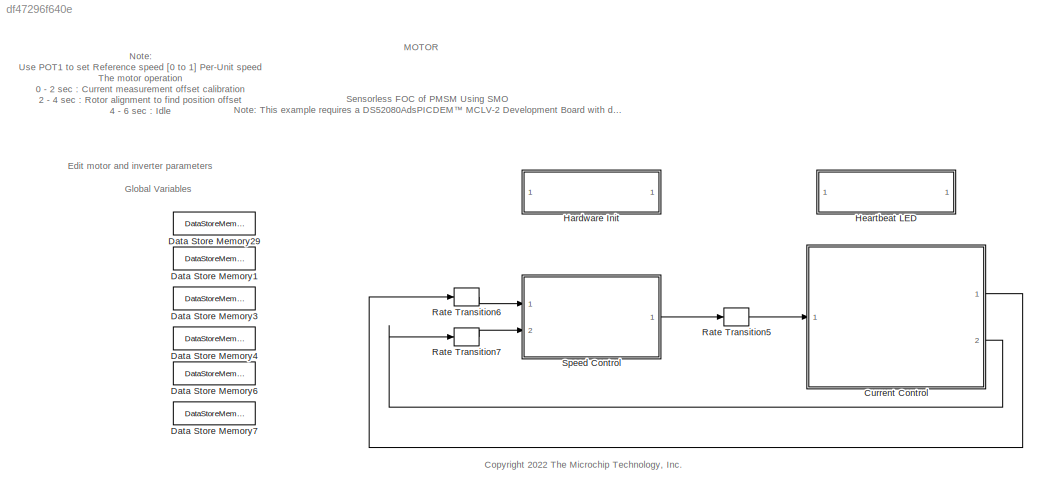
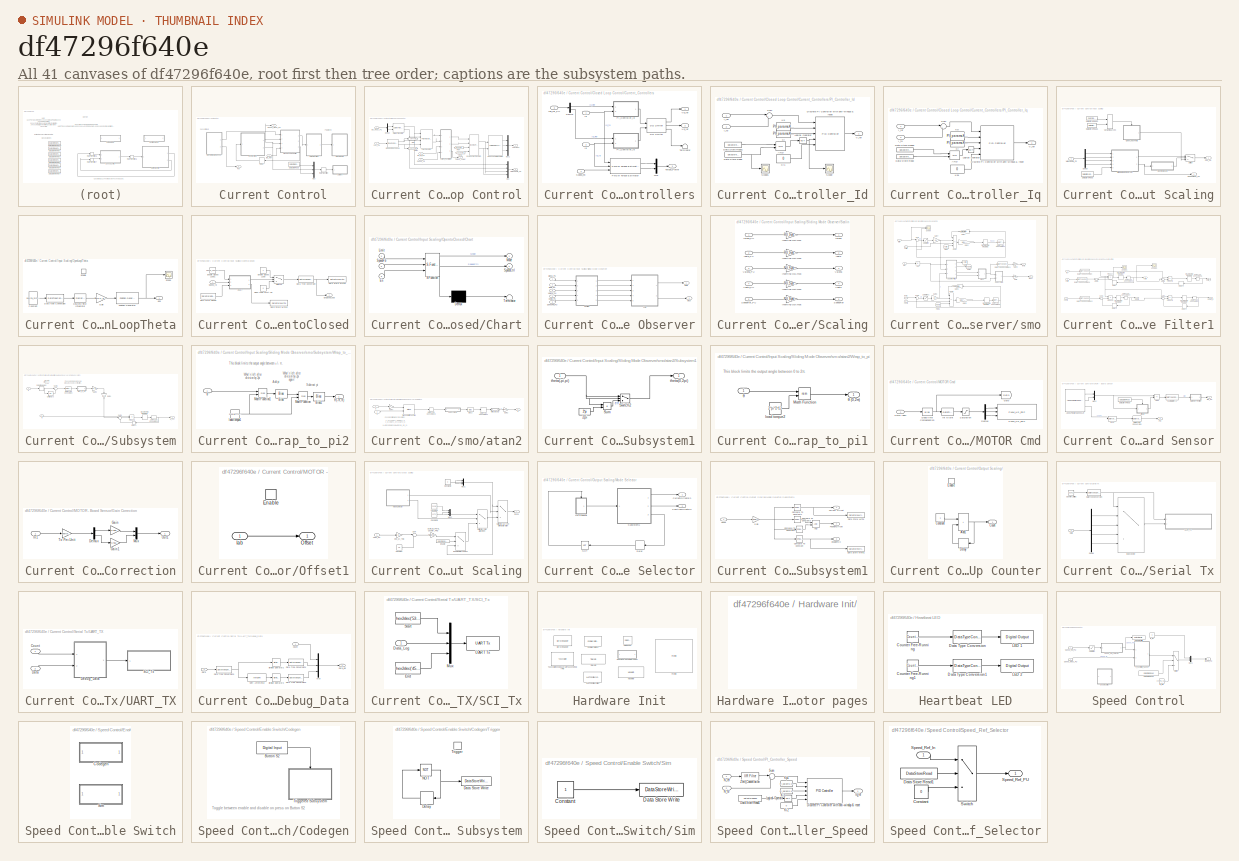
[diagram: thumbnail index - all 41 canvases of the model, root first then tree order]
MODEL slx_df47296f640e
KIND model
CONFIG AbsTol = auto
CONFIG EnableMultiTasking = on
CONFIG FixedStep = .00005
CONFIG InitFcn = dsPIC33CK256MP508_MCLV2_SMO_data;
CONFIG MaxStep = auto
CONFIG MinStep = auto
CONFIG RelTol = 1e-3
CONFIG SampleTimeConstraint = Unconstrained
CONFIG SolverName = FixedStepDiscrete
CONFIG StartTime = 0.0
CONFIG StopTime = 10
BLOCK [SubSystem] Current Control
  Ports = [1, 2]
  RequestExecContextInheritance = off
  VariantControl = Optimized
BLOCK [SubSystem] Current Control/Closed Loop Control
  Ports = [4, 3]
  RequestExecContextInheritance = off
BLOCK [Reference] Current Control/Closed Loop Control/Clarke Transform  REF=mcbcontrolslib/Clarke Transform
  Ports = [2, 2]
  SourceBlock = mcbcontrolslib/Clarke Transform
  SourceProductBaseCode = MT
  SourceType = Clarke Transform
BLOCK [SubSystem] Current Control/Closed Loop Control/Current_Controllers
  Ports = [4, 3]
  RequestExecContextInheritance = off
BLOCK [Reference] Current Control/Closed Loop Control/Current_Controllers/DQ Limiter  REF=mcbcontrolslib/DQ Limiter
  Ports = [2, 3]
  SourceBlock = mcbcontrolslib/DQ Limiter
  SourceProductBaseCode = MT
  SourceType = DQ Limiter
BLOCK [Demux] Current Control/Closed Loop Control/Current_Controllers/Demux
  Outputs = 2
  Ports = [1, 2]
BLOCK [Inport] Current Control/Closed Loop Control/Current_Controllers/Id
BLOCK [Inport] Current Control/Closed Loop Control/Current_Controllers/Idq_ref_PU
  Port = 3
BLOCK [Inport] Current Control/Closed Loop Control/Current_Controllers/Iq
  Port = 2
BLOCK [Mux] Current Control/Closed Loop Control/Current_Controllers/Mux
  DisplayOption = bar
  Inputs = 2
  Ports = [2, 1]
BLOCK [SubSystem] Current Control/Closed Loop Control/Current_Controllers/PI_Controller_Id
  NameLocation = top
  Ports = [2, 1]
  RequestExecContextInheritance = off
BLOCK [Logic] Current Control/Closed Loop Control/Current_Controllers/PI_Controller_Id/AND
  AllPortsSameDT = off
  IconShape = distinctive
  OutDataTypeStr = boolean
  Ports = [2, 1]
BLOCK [DataStoreRead] Current Control/Closed Loop Control/Current_Controllers/PI_Controller_Id/Data Store Read
  DataStoreName = Enable
  IndexOptions = Index vector (dialog)
  Indices = 1
  OutputSizes = 1
  Ports = [0, 1]
BLOCK [DataStoreRead] Current Control/Closed Loop Control/Current_Controllers/PI_Controller_Id/Data Store Read1
  DataStoreName = EnableFOC
  IndexOptions = Index vector (dialog)
  Indices = 1
  OutputSizes = 1
  Ports = [0, 1]
BLOCK [Reference] Current Control/Closed Loop Control/Current_Controllers/PI_Controller_Id/Discrete PI Controller with anti-windup & reset  REF=slpidlib/PID Controller
  Ports = [5, 1]
  SourceBlock = slpidlib/PID Controller
  SourceProductBaseCode = SL
  SourceType = PID 1dof
BLOCK [Inport] Current Control/Closed Loop Control/Current_Controllers/PI_Controller_Id/I_fb
  Port = 2
BLOCK [Inport] Current Control/Closed Loop Control/Current_Controllers/PI_Controller_Id/I_ref
BLOCK [Constant] Current Control/Closed Loop Control/Current_Controllers/PI_Controller_Id/Ki
  OutDataTypeStr = dataType
  SampleTime = -1
  Value = PI_params.Ki_i*Ts/2
BLOCK [Constant] Current Control/Closed Loop Control/Current_Controllers/PI_Controller_Id/Ki1
  NameLocation = top
  OutDataTypeStr = dataType
  SampleTime = -1
  Value = 0
BLOCK [Constant] Current Control/Closed Loop Control/Current_Controllers/PI_Controller_Id/Kp
  NameLocation = top
  OutDataTypeStr = dataType2
  SampleTime = -1
  Value = PI_params.Kp_i/2
BLOCK [Logic] Current Control/Closed Loop Control/Current_Controllers/PI_Controller_Id/Logical Operator
  AllPortsSameDT = off
  IconShape = distinctive
  Operator = NOT
  OutDataTypeStr = boolean
  Ports = [1, 1]
BLOCK [Scope] Current Control/Closed Loop Control/Current_Controllers/PI_Controller_Id/Scope
  Floating = off
  NumInputPorts = 1
  Ports = [1]
  ScopeSpecificationString = Simulink.scopes.TimeScopeBlockCfg('CurrentConfiguration', extmgr.ConfigurationSet(extmgr.Configuration('Core','General UI',true),extmgr.Configuration('Core','Source UI',true),extmgr.Configuration('Sources','WiredSimulink',true,'DataLoggingVariableName','ScopeData7'),extmgr.Configuration('Visuals','Time Domain',true,'SerializedDisplays',{struct('MinYLimReal','-0.125','MaxYLimReal','1.125','YLabelRe...<+1415ch>
BLOCK [Scope] Current Control/Closed Loop Control/Current_Controllers/PI_Controller_Id/Scope1
  Floating = off
  NumInputPorts = 1
  Ports = [1]
  ScopeSpecificationString = Simulink.scopes.TimeScopeBlockCfg('CurrentConfiguration', extmgr.ConfigurationSet(extmgr.Configuration('Core','General UI',true),extmgr.Configuration('Core','Source UI',true),extmgr.Configuration('Sources','WiredSimulink',true,'DataLoggingVariableName','ScopeData10'),extmgr.Configuration('Visuals','Time Domain',true,'SerializedDisplays',{struct('MinYLimReal','-0.125','MaxYLimReal','1.125','YLabelR...<+1416ch>
BLOCK [Sum] Current Control/Closed Loop Control/Current_Controllers/PI_Controller_Id/Sum
  AccumDataTypeStr = Inherit: Same as first input
  Inputs = |+-
  OutDataTypeStr = Inherit: Same as first input
  Ports = [2, 1]
BLOCK [Outport] Current Control/Closed Loop Control/Current_Controllers/PI_Controller_Id/V_ref
  VectorParamsAs1DForOutWhenUnconnected = off
BLOCK [SubSystem] Current Control/Closed Loop Control/Current_Controllers/PI_Controller_Iq
  NameLocation = top
  Ports = [2, 1]
  RequestExecContextInheritance = off
BLOCK [Logic] Current Control/Closed Loop Control/Current_Controllers/PI_Controller_Iq/AND
  AllPortsSameDT = off
  IconShape = distinctive
  OutDataTypeStr = boolean
  Ports = [2, 1]
BLOCK [DataStoreRead] Current Control/Closed Loop Control/Current_Controllers/PI_Controller_Iq/Data Store Read
  DataStoreName = Enable
  IndexOptions = Index vector (dialog)
  Indices = 1
  OutputSizes = 1
  Ports = [0, 1]
BLOCK [DataStoreRead] Current Control/Closed Loop Control/Current_Controllers/PI_Controller_Iq/Data Store Read1
  DataStoreName = EnableFOC
  IndexOptions = Index vector (dialog)
  Indices = 1
  OutputSizes = 1
  Ports = [0, 1]
BLOCK [Reference] Current Control/Closed Loop Control/Current_Controllers/PI_Controller_Iq/Discrete PI Controller with anti-windup & reset  REF=slpidlib/PID Controller
  Ports = [5, 1]
  SourceBlock = slpidlib/PID Controller
  SourceProductBaseCode = SL
  SourceType = PID 1dof
BLOCK [Inport] Current Control/Closed Loop Control/Current_Controllers/PI_Controller_Iq/I_fb
  Port = 2
BLOCK [Inport] Current Control/Closed Loop Control/Current_Controllers/PI_Controller_Iq/I_ref
BLOCK [Constant] Current Control/Closed Loop Control/Current_Controllers/PI_Controller_Iq/Ki
  OutDataTypeStr = dataType
  SampleTime = -1
  Value = PI_params.Ki_i*Ts/2
BLOCK [Constant] Current Control/Closed Loop Control/Current_Controllers/PI_Controller_Iq/Kp
  NameLocation = top
  OutDataTypeStr = dataType2
  SampleTime = -1
  Value = PI_params.Kp_i/2
BLOCK [Constant] Current Control/Closed Loop Control/Current_Controllers/PI_Controller_Iq/Kp1
  NameLocation = top
  OutDataTypeStr = dataType
  SampleTime = -1
  Value = 0
BLOCK [Logic] Current Control/Closed Loop Control/Current_Controllers/PI_Controller_Iq/Logical Operator
  AllPortsSameDT = off
  IconShape = distinctive
  Operator = NOT
  OutDataTypeStr = boolean
  Ports = [1, 1]
BLOCK [Sum] Current Control/Closed Loop Control/Current_Controllers/PI_Controller_Iq/Sum
  AccumDataTypeStr = Inherit: Same as first input
  Inputs = |+-
  OutDataTypeStr = Inherit: Same as first input
  Ports = [2, 1]
BLOCK [Outport] Current Control/Closed Loop Control/Current_Controllers/PI_Controller_Iq/V_ref
  VectorParamsAs1DForOutWhenUnconnected = off
BLOCK [Reference] Current Control/Closed Loop Control/Current_Controllers/PMSM Torque Estimator  REF=mcbcontrolslib/PMSM Torque Estimator
  Ports = [3, 2]
  SourceBlock = mcbcontrolslib/PMSM Torque Estimator
  SourceProductBaseCode = MT
  SourceType = PMSM Torque Estimator
BLOCK [Inport] Current Control/Closed Loop Control/Current_Controllers/Speed_Fb
  Port = 4
BLOCK [Terminator] Current Control/Closed Loop Control/Current_Controllers/Terminator
BLOCK [Outport] Current Control/Closed Loop Control/Current_Controllers/Torque_Power
  Port = 3
BLOCK [Outport] Current Control/Closed Loop Control/Current_Controllers/Vd_ref
  VectorParamsAs1DForOutWhenUnconnected = off
BLOCK [Outport] Current Control/Closed Loop Control/Current_Controllers/Vq_ref
  Port = 2
  VectorParamsAs1DForOutWhenUnconnected = off
BLOCK [Demux] Current Control/Closed Loop Control/Demux
  Outputs = 2
  Ports = [1, 2]
BLOCK [From] Current Control/Closed Loop Control/From
  GotoTag = sinTheta
BLOCK [From] Current Control/Closed Loop Control/From1
  GotoTag = cosTheta
BLOCK [Goto] Current Control/Closed Loop Control/Goto
  GotoTag = sinTheta
BLOCK [Goto] Current Control/Closed Loop Control/Goto1
  GotoTag = cosTheta
BLOCK [Inport] Current Control/Closed Loop Control/Iab_meas_PU
BLOCK [Inport] Current Control/Closed Loop Control/Idq_ref_PU
  Port = 4
BLOCK [Reference] Current Control/Closed Loop Control/Inverse Park Transform  REF=mcbcontrolslib/Inverse Park Transform
  Ports = [4, 2]
  SourceBlock = mcbcontrolslib/Inverse Park Transform
  SourceProductBaseCode = MT
  SourceType = Inverse Park Transform
BLOCK [Mux] Current Control/Closed Loop Control/Mux
  DisplayOption = bar
  Ports = [4, 1]
BLOCK [Mux] Current Control/Closed Loop Control/Mux1
  DisplayOption = bar
  Inputs = 3
  Ports = [3, 1]
BLOCK [Reference] Current Control/Closed Loop Control/Park Transform  REF=mcbcontrolslib/Park Transform
  Ports = [4, 2]
  SourceBlock = mcbcontrolslib/Park Transform
  SourceProductBaseCode = MT
  SourceType = Park Transform
BLOCK [Inport] Current Control/Closed Loop Control/Pos_PU
  Port = 2
BLOCK [Reference] Current Control/Closed Loop Control/Sine-Cosine Lookup  REF=mcbcontrolslib/Sine-Cosine Lookup
  Ports = [1, 2]
  SourceBlock = mcbcontrolslib/Sine-Cosine Lookup
  SourceProductBaseCode = MT
  SourceType = Sine-Cosine Lookup
BLOCK [Reference] Current Control/Closed Loop Control/Space Vector Generator  REF=mcbcontrolslib/PWM Reference Generator
  Ports = [2, 3]
  SourceBlock = mcbcontrolslib/PWM Reference Generator
  SourceProductBaseCode = MT
  SourceType = PWM Modulation
BLOCK [Inport] Current Control/Closed Loop Control/Speed_Fb
  Port = 3
BLOCK [Outport] Current Control/Closed Loop Control/Torque_Power
  Port = 3
BLOCK [Outport] Current Control/Closed Loop Control/VIalphabeta_Fb
  Port = 2
BLOCK [Outport] Current Control/Closed Loop Control/Vabc in PU
  VectorParamsAs1DForOutWhenUnconnected = off
BLOCK [DataStoreRead] Current Control/Data Store Read
  DataStoreName = SpeedRef
  IndexOptions = Index vector (dialog)
  Indices = 1
  OutputSizes = 1
  Ports = [0, 1]
BLOCK [Delay] Current Control/Delay
  DelayLength = 1
  InputPortMap = u0
  NameLocation = top
  Ports = [1, 1]
BLOCK [Inport] Current Control/Idq_Ref
BLOCK [SubSystem] Current Control/Input Scaling
  Ports = [1, 2]
  RequestExecContextInheritance = off
BLOCK [DataStoreRead] Current Control/Input Scaling/Data Store Read
  DataStoreName = SpeedRef
  IndexOptions = Index vector (dialog)
  Indices = 1
  OutputSizes = 1
  Ports = [0, 1]
BLOCK [DataStoreRead] Current Control/Input Scaling/Data Store Read1
  DataStoreName = EnableFOC
  IndexOptions = Index vector (dialog)
  Indices = 1
  OutputSizes = 1
  Ports = [0, 1]
BLOCK [DataStoreRead] Current Control/Input Scaling/Data Store Read2
  DataStoreName = Enable
  IndexOptions = Index vector (dialog)
  Indices = 1
  OutputSizes = 1
  Ports = [0, 1]
BLOCK [Demux] Current Control/Input Scaling/Demux
  Ports = [1, 4]
BLOCK [SubSystem] Current Control/Input Scaling/OpenLoopTheta
  Ports = [0, 1, 1]
  RequestExecContextInheritance = off
BLOCK [Constant] Current Control/Input Scaling/OpenLoopTheta/Constant
  OutDataTypeStr = dataType
  Value = 500/PU_System.N_base
BLOCK [DataTypeConversion] Current Control/Input Scaling/OpenLoopTheta/Data Type Conversion
  ConvertRealWorld = Stored Integer (SI)
  OutDataTypeStr = fixdt(1,32,20)
  RndMeth = Floor
  SaturateOnIntegerOverflow = off
BLOCK [DiscreteIntegrator] Current Control/Input Scaling/OpenLoopTheta/Discrete-Time Integrator
  ICPrevOutput = DiscIntNeverNeededParam
  ICPrevScaledInput = DiscIntNeverNeededParam
  InitialConditionSetting = Auto
  IntegratorMethod = Accumulation: Forward Euler
  LimitOutput = on
  LowerSaturationLimit = 0
  OutDataTypeStr = fixdt(1,32,20)
  Ports = [1, 1]
  SampleTime = Ts
  UpperSaturationLimit = 500/PU_System.N_base
  gainval = 0.002
BLOCK [EnablePort] Current Control/Input Scaling/OpenLoopTheta/Enable
  Ports = []
BLOCK [Gain] Current Control/Input Scaling/OpenLoopTheta/Gain
  Gain = Ts*PU_System.N_base*pmsm.p/60
  OutDataTypeStr = dataType
  ParamDataTypeStr = Inherit: Same as input
BLOCK [Reference] Current Control/Input Scaling/OpenLoopTheta/Position Generator  REF=mcbcontrolslib/Position Generator
  Ports = [1, 1]
  SourceBlock = mcbcontrolslib/Position Generator
  SourceProductBaseCode = MT
  SourceType = Position Generator
BLOCK [Scope] Current Control/Input Scaling/OpenLoopTheta/Scope
  Floating = off
  NumInputPorts = 1
  Ports = [1]
  ScopeSpecificationString = Simulink.scopes.TimeScopeBlockCfg('CurrentConfiguration', extmgr.ConfigurationSet(extmgr.Configuration('Core','General UI',true),extmgr.Configuration('Core','Source UI',true),extmgr.Configuration('Sources','WiredSimulink',true,'DataLoggingVariableName','ScopeData1'),extmgr.Configuration('Visuals','Time Domain',true,'SerializedDisplays',{struct('MinYLimReal','-0.125','MaxYLimReal','1.125','YLabelRe...<+1436ch>
BLOCK [Outport] Current Control/Input Scaling/OpenLoopTheta/eps
BLOCK [SubSystem] Current Control/Input Scaling/OpentoClosed
  Ports = [1, 1]
  RequestExecContextInheritance = off
BLOCK [SubSystem] Current Control/Input Scaling/OpentoClosed/Chart
  ErrorFcn = Stateflow.Translate.translate
  PermitHierarchicalResolution = ExplicitOnly
  Ports = [3, 2]
  RequestExecContextInheritance = off
  SFBlockType = Chart
  TreatAsAtomicUnit = on
BLOCK [Demux] Current Control/Input Scaling/OpentoClosed/Chart/ Demux 
  Outputs = 1
  Ports = [1, 1]
BLOCK [S-Function] Current Control/Input Scaling/OpentoClosed/Chart/ SFunction 
  EnableBusSupport = on
  FunctionName = sf_sfun
  PortCounts = [3 3]
  Ports = [3, 3]
  SFcnIsStateOwnerBlock = off
  SFunctionDeploymentMode = off
  Tag = Stateflow S-Function 3
BLOCK [Terminator] Current Control/Input Scaling/OpentoClosed/Chart/ Terminator 
BLOCK [Inport] Current Control/Input Scaling/OpentoClosed/Chart/En
  Port = 3
BLOCK [Inport] Current Control/Input Scaling/OpentoClosed/Chart/Limit
BLOCK [Outport] Current Control/Input Scaling/OpentoClosed/Chart/Mode
BLOCK [Outport] Current Control/Input Scaling/OpentoClosed/Chart/SpeedCtrl
  Port = 2
BLOCK [Inport] Current Control/Input Scaling/OpentoClosed/Chart/SpeedFb
  Port = 2
BLOCK [DataStoreRead] Current Control/Input Scaling/OpentoClosed/Data Store Read5
  DataStoreName = Enable
  IndexOptions = Index vector (dialog)
  Indices = 1
  OutputSizes = 1
  Ports = [0, 1]
BLOCK [DataStoreWrite] Current Control/Input Scaling/OpentoClosed/Data Store Write1
  DataStoreName = EnSpeedCtrl
  IndexOptions = Index vector (dialog)
  Indices = 1
  OutputSizes = 1
  Ports = [1]
BLOCK [DataStoreWrite] Current Control/Input Scaling/OpentoClosed/Data Store Write2
  DataStoreName = EnableClosedLoop
  IndexOptions = Index vector (dialog)
  Indices = 1
  OutputSizes = 1
  Ports = [1]
BLOCK [DataTypeConversion] Current Control/Input Scaling/OpentoClosed/Data Type Conversion
  OutDataTypeStr = boolean
  RndMeth = Simplest
  SaturateOnIntegerOverflow = off
BLOCK [Outport] Current Control/Input Scaling/OpentoClosed/EnClosedLoop
BLOCK [Constant] Current Control/Input Scaling/OpentoClosed/Enable Closed Loop
  OutDataTypeStr = uint16
BLOCK [Constant] Current Control/Input Scaling/OpentoClosed/Enable Closed Loop1
  OutDataTypeStr = dataType
  Value = Speed_openLoop/PU_System.N_base
BLOCK [Constant] Current Control/Input Scaling/OpentoClosed/Open Loop Start-up
  OutDataTypeStr = uint16
  Value = 0
BLOCK [Inport] Current Control/Input Scaling/OpentoClosed/Speed_fb
BLOCK [Switch] Current Control/Input Scaling/OpentoClosed/Switch2
  Criteria = u2 > Threshold
  InputSameDT = off
  SaturateOnIntegerOverflow = off
  Threshold = 1
BLOCK [Outport] Current Control/Input Scaling/Pos_PU
BLOCK [SubSystem] Current Control/Input Scaling/Sliding Mode Observer
  Ports = [5, 2]
  RequestExecContextInheritance = off
BLOCK [Inport] Current Control/Input Scaling/Sliding Mode Observer/Ialpha_PU
  NameLocation = top
BLOCK [Inport] Current Control/Input Scaling/Sliding Mode Observer/Ibeta_PU
  NameLocation = top
  Port = 2
BLOCK [SubSystem] Current Control/Input Scaling/Sliding Mode Observer/Scaling
  Ports = [5, 5]
  RequestExecContextInheritance = off
BLOCK [Outport] Current Control/Input Scaling/Sliding Mode Observer/Scaling/Ialpha
  NameLocation = top
BLOCK [Inport] Current Control/Input Scaling/Sliding Mode Observer/Scaling/Ialpha_PU
BLOCK [Outport] Current Control/Input Scaling/Sliding Mode Observer/Scaling/Ibeta
  NameLocation = top
  Port = 2
BLOCK [Inport] Current Control/Input Scaling/Sliding Mode Observer/Scaling/Ibeta_PU
  Port = 2
BLOCK [Gain] Current Control/Input Scaling/Sliding Mode Observer/Scaling/Inverting OpAmp1
  Gain = PU_System.I_base
  OutDataTypeStr = fixdt(1,16,12)
  RndMeth = Simplest
BLOCK [Gain] Current Control/Input Scaling/Sliding Mode Observer/Scaling/Inverting OpAmp2
  Gain = PU_System.I_base
  OutDataTypeStr = fixdt(1,16,12)
  RndMeth = Simplest
BLOCK [Gain] Current Control/Input Scaling/Sliding Mode Observer/Scaling/Inverting OpAmp3
  Gain = PU_System.V_base
  OutDataTypeStr = fixdt(1,16,11)
  RndMeth = Simplest
BLOCK [Gain] Current Control/Input Scaling/Sliding Mode Observer/Scaling/Inverting OpAmp4
  Gain = PU_System.V_base
  OutDataTypeStr = fixdt(1,16,11)
  RndMeth = Simplest
BLOCK [Gain] Current Control/Input Scaling/Sliding Mode Observer/Scaling/Inverting OpAmp5
  Gain = PU_System.N_base*2*pi*pmsm.p/60
  OutDataTypeStr = fixdt(1,16,3)
  RndMeth = Simplest
BLOCK [Outport] Current Control/Input Scaling/Sliding Mode Observer/Scaling/SpeedRef
  NameLocation = top
  Port = 5
BLOCK [Inport] Current Control/Input Scaling/Sliding Mode Observer/Scaling/SpeedRef_PU
  NameLocation = top
  Port = 5
BLOCK [Outport] Current Control/Input Scaling/Sliding Mode Observer/Scaling/Valpha
  NameLocation = top
  Port = 3
BLOCK [Inport] Current Control/Input Scaling/Sliding Mode Observer/Scaling/Valpha_PU
  Port = 3
BLOCK [Outport] Current Control/Input Scaling/Sliding Mode Observer/Scaling/Vbeta
  NameLocation = top
  Port = 4
BLOCK [Inport] Current Control/Input Scaling/Sliding Mode Observer/Scaling/Vbeta_PU
  Port = 4
BLOCK [Inport] Current Control/Input Scaling/Sliding Mode Observer/SpeedRef_PU
  NameLocation = top
  Port = 5
BLOCK [Inport] Current Control/Input Scaling/Sliding Mode Observer/Valpha_PU
  NameLocation = top
  Port = 3
BLOCK [Inport] Current Control/Input Scaling/Sliding Mode Observer/Vbeta_PU
  NameLocation = top
  Port = 4
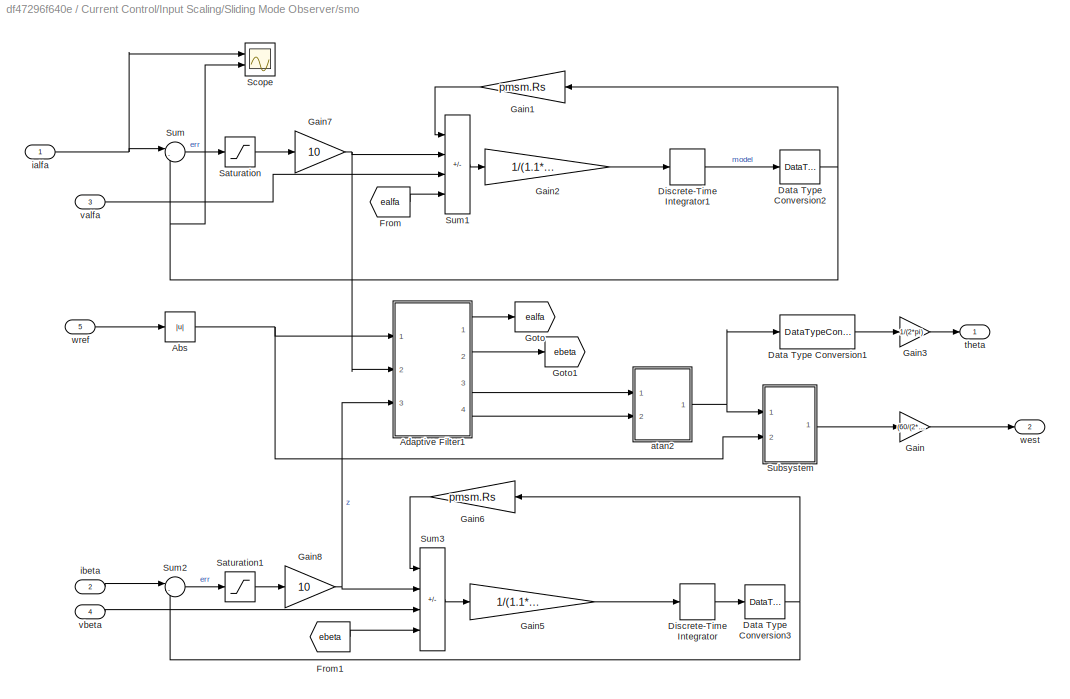
BLOCK [SubSystem] Current Control/Input Scaling/Sliding Mode Observer/smo
  NameLocation = top
  Ports = [5, 2]
  RequestExecContextInheritance = off
BLOCK [Abs] Current Control/Input Scaling/Sliding Mode Observer/smo/Abs
  SaturateOnIntegerOverflow = off
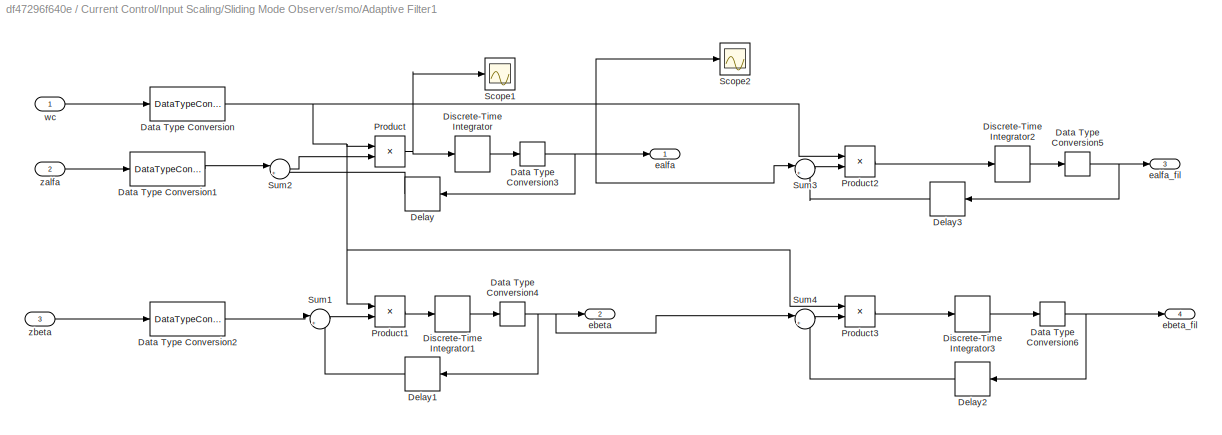
BLOCK [SubSystem] Current Control/Input Scaling/Sliding Mode Observer/smo/Adaptive Filter1
  Ports = [3, 4]
  RequestExecContextInheritance = off
BLOCK [DataTypeConversion] Current Control/Input Scaling/Sliding Mode Observer/smo/Adaptive Filter1/Data Type Conversion
  OutDataTypeStr = fixdt(1,16,4)
  RndMeth = Floor
  SaturateOnIntegerOverflow = off
BLOCK [DataTypeConversion] Current Control/Input Scaling/Sliding Mode Observer/smo/Adaptive Filter1/Data Type Conversion1
  OutDataTypeStr = fixdt(1,16,12)
  RndMeth = Floor
  SaturateOnIntegerOverflow = off
BLOCK [DataTypeConversion] Current Control/Input Scaling/Sliding Mode Observer/smo/Adaptive Filter1/Data Type Conversion2
  OutDataTypeStr = fixdt(1,16,12)
  RndMeth = Floor
  SaturateOnIntegerOverflow = off
BLOCK [DataTypeConversion] Current Control/Input Scaling/Sliding Mode Observer/smo/Adaptive Filter1/Data Type Conversion3
  OutDataTypeStr = fixdt(1,16,12)
  RndMeth = Floor
  SaturateOnIntegerOverflow = off
BLOCK [DataTypeConversion] Current Control/Input Scaling/Sliding Mode Observer/smo/Adaptive Filter1/Data Type Conversion4
  OutDataTypeStr = fixdt(1,16,12)
  RndMeth = Floor
  SaturateOnIntegerOverflow = off
BLOCK [DataTypeConversion] Current Control/Input Scaling/Sliding Mode Observer/smo/Adaptive Filter1/Data Type Conversion5
  OutDataTypeStr = fixdt(1,16,12)
  RndMeth = Floor
  SaturateOnIntegerOverflow = off
BLOCK [DataTypeConversion] Current Control/Input Scaling/Sliding Mode Observer/smo/Adaptive Filter1/Data Type Conversion6
  OutDataTypeStr = fixdt(1,16,12)
  RndMeth = Floor
  SaturateOnIntegerOverflow = off
BLOCK [Delay] Current Control/Input Scaling/Sliding Mode Observer/smo/Adaptive Filter1/Delay
  DelayLength = 1
  InputPortMap = u0
  NameLocation = top
  Ports = [1, 1]
BLOCK [Delay] Current Control/Input Scaling/Sliding Mode Observer/smo/Adaptive Filter1/Delay1
  DelayLength = 1
  InputPortMap = u0
  NameLocation = top
  Ports = [1, 1]
BLOCK [Delay] Current Control/Input Scaling/Sliding Mode Observer/smo/Adaptive Filter1/Delay2
  DelayLength = 1
  InputPortMap = u0
  NameLocation = top
  Ports = [1, 1]
BLOCK [Delay] Current Control/Input Scaling/Sliding Mode Observer/smo/Adaptive Filter1/Delay3
  DelayLength = 1
  InputPortMap = u0
  NameLocation = top
  Ports = [1, 1]
BLOCK [DiscreteIntegrator] Current Control/Input Scaling/Sliding Mode Observer/smo/Adaptive Filter1/Discrete-Time Integrator
  ICPrevOutput = DiscIntNeverNeededParam
  ICPrevScaledInput = DiscIntNeverNeededParam
  InitialConditionSetting = Auto
  IntegratorMethod = Integration: Backward Euler
  OutDataTypeStr = fixdt(1,32,17)
  Ports = [1, 1]
  SampleTime = -1
BLOCK [DiscreteIntegrator] Current Control/Input Scaling/Sliding Mode Observer/smo/Adaptive Filter1/Discrete-Time Integrator1
  ICPrevOutput = DiscIntNeverNeededParam
  ICPrevScaledInput = DiscIntNeverNeededParam
  InitialConditionSetting = Auto
  IntegratorMethod = Integration: Backward Euler
  OutDataTypeStr = fixdt(1,32,17)
  Ports = [1, 1]
  SampleTime = -1
BLOCK [DiscreteIntegrator] Current Control/Input Scaling/Sliding Mode Observer/smo/Adaptive Filter1/Discrete-Time Integrator2
  ICPrevOutput = DiscIntNeverNeededParam
  ICPrevScaledInput = DiscIntNeverNeededParam
  InitialConditionSetting = Auto
  IntegratorMethod = Integration: Backward Euler
  OutDataTypeStr = fixdt(1,32,17)
  Ports = [1, 1]
  SampleTime = -1
BLOCK [DiscreteIntegrator] Current Control/Input Scaling/Sliding Mode Observer/smo/Adaptive Filter1/Discrete-Time Integrator3
  ICPrevOutput = DiscIntNeverNeededParam
  ICPrevScaledInput = DiscIntNeverNeededParam
  InitialConditionSetting = Auto
  IntegratorMethod = Integration: Backward Euler
  OutDataTypeStr = fixdt(1,32,17)
  Ports = [1, 1]
  SampleTime = -1
BLOCK [Product] Current Control/Input Scaling/Sliding Mode Observer/smo/Adaptive Filter1/Product
  OutDataTypeStr = fixdt(1,32,17)
  Ports = [2, 1]
BLOCK [Product] Current Control/Input Scaling/Sliding Mode Observer/smo/Adaptive Filter1/Product1
  OutDataTypeStr = fixdt(1,32,17)
  Ports = [2, 1]
BLOCK [Product] Current Control/Input Scaling/Sliding Mode Observer/smo/Adaptive Filter1/Product2
  Ports = [2, 1]
BLOCK [Product] Current Control/Input Scaling/Sliding Mode Observer/smo/Adaptive Filter1/Product3
  Ports = [2, 1]
BLOCK [Scope] Current Control/Input Scaling/Sliding Mode Observer/smo/Adaptive Filter1/Scope1
  Floating = off
  NumInputPorts = 1
  Ports = [1]
  ScopeSpecificationString = Simulink.scopes.TimeScopeBlockCfg('CurrentConfiguration', extmgr.ConfigurationSet(extmgr.Configuration('Core','General UI',true),extmgr.Configuration('Core','Source UI',true),extmgr.Configuration('Sources','WiredSimulink',true,'DataLoggingVariableName','ScopeData2'),extmgr.Configuration('Visuals','Time Domain',true,'SerializedDisplays',{struct('MinYLimReal','-27.4006','MaxYLimReal','13.63695','YLa...<+1433ch>
BLOCK [Scope] Current Control/Input Scaling/Sliding Mode Observer/smo/Adaptive Filter1/Scope2
  Floating = off
  NumInputPorts = 1
  Ports = [1]
  ScopeSpecificationString = Simulink.scopes.TimeScopeBlockCfg('CurrentConfiguration', extmgr.ConfigurationSet(extmgr.Configuration('Core','General UI',true),extmgr.Configuration('Core','Source UI',true),extmgr.Configuration('Sources','WiredSimulink',true,'DataLoggingVariableName','ScopeData3'),extmgr.Configuration('Visuals','Time Domain',true,'SerializedDisplays',{struct('MinYLimReal','-27.4006','MaxYLimReal','13.63695','YLa...<+1433ch>
BLOCK [Sum] Current Control/Input Scaling/Sliding Mode Observer/smo/Adaptive Filter1/Sum1
  Inputs = |+-
  Ports = [2, 1]
BLOCK [Sum] Current Control/Input Scaling/Sliding Mode Observer/smo/Adaptive Filter1/Sum2
  Inputs = |+-
  Ports = [2, 1]
BLOCK [Sum] Current Control/Input Scaling/Sliding Mode Observer/smo/Adaptive Filter1/Sum3
  Inputs = |+-
  Ports = [2, 1]
BLOCK [Sum] Current Control/Input Scaling/Sliding Mode Observer/smo/Adaptive Filter1/Sum4
  Inputs = |+-
  Ports = [2, 1]
BLOCK [Outport] Current Control/Input Scaling/Sliding Mode Observer/smo/Adaptive Filter1/ealfa
  NameLocation = top
  VectorParamsAs1DForOutWhenUnconnected = off
BLOCK [Outport] Current Control/Input Scaling/Sliding Mode Observer/smo/Adaptive Filter1/ealfa_fil
  NameLocation = top
  Port = 3
  VectorParamsAs1DForOutWhenUnconnected = off
BLOCK [Outport] Current Control/Input Scaling/Sliding Mode Observer/smo/Adaptive Filter1/ebeta
  NameLocation = top
  Port = 2
  VectorParamsAs1DForOutWhenUnconnected = off
BLOCK [Outport] Current Control/Input Scaling/Sliding Mode Observer/smo/Adaptive Filter1/ebeta_fil
  NameLocation = top
  Port = 4
  VectorParamsAs1DForOutWhenUnconnected = off
BLOCK [Inport] Current Control/Input Scaling/Sliding Mode Observer/smo/Adaptive Filter1/wc
BLOCK [Inport] Current Control/Input Scaling/Sliding Mode Observer/smo/Adaptive Filter1/zalfa
  Port = 2
BLOCK [Inport] Current Control/Input Scaling/Sliding Mode Observer/smo/Adaptive Filter1/zbeta
  Port = 3
BLOCK [DataTypeConversion] Current Control/Input Scaling/Sliding Mode Observer/smo/Data Type Conversion1
  OutDataTypeStr = fixdt(1,16,12)
  RndMeth = Floor
  SaturateOnIntegerOverflow = off
BLOCK [DataTypeConversion] Current Control/Input Scaling/Sliding Mode Observer/smo/Data Type Conversion2
  OutDataTypeStr = fixdt(1,16,12)
  RndMeth = Floor
  SaturateOnIntegerOverflow = off
BLOCK [DataTypeConversion] Current Control/Input Scaling/Sliding Mode Observer/smo/Data Type Conversion3
  OutDataTypeStr = fixdt(1,16,12)
  RndMeth = Floor
  SaturateOnIntegerOverflow = off
BLOCK [DiscreteIntegrator] Current Control/Input Scaling/Sliding Mode Observer/smo/Discrete-Time Integrator
  ICPrevOutput = DiscIntNeverNeededParam
  ICPrevScaledInput = DiscIntNeverNeededParam
  InitialConditionSetting = Auto
  OutDataTypeStr = fixdt(1,32,17)
  Ports = [1, 1]
  SampleTime = -1
BLOCK [DiscreteIntegrator] Current Control/Input Scaling/Sliding Mode Observer/smo/Discrete-Time Integrator1
  ICPrevOutput = DiscIntNeverNeededParam
  ICPrevScaledInput = DiscIntNeverNeededParam
  InitialConditionSetting = Auto
  OutDataTypeStr = fixdt(1,32,17)
  Ports = [1, 1]
  SampleTime = -1
BLOCK [From] Current Control/Input Scaling/Sliding Mode Observer/smo/From
  GotoTag = ealfa
BLOCK [From] Current Control/Input Scaling/Sliding Mode Observer/smo/From1
  GotoTag = ebeta
BLOCK [Gain] Current Control/Input Scaling/Sliding Mode Observer/smo/Gain
  Gain = (60/(2*pi*pmsm.p))/PU_System.N_base
  OutDataTypeStr = dataType
BLOCK [Gain] Current Control/Input Scaling/Sliding Mode Observer/smo/Gain1
  Gain = pmsm.Rs
  OutDataTypeStr = fixdt(1,16,12)
BLOCK [Gain] Current Control/Input Scaling/Sliding Mode Observer/smo/Gain2
  Gain = 1/(1.1*(pmsm.Ld))
  OutDataTypeStr = fixdt(1,32,14)
BLOCK [Gain] Current Control/Input Scaling/Sliding Mode Observer/smo/Gain3
  Gain = 1/(2*pi)
  OutDataTypeStr = dataType
BLOCK [Gain] Current Control/Input Scaling/Sliding Mode Observer/smo/Gain5
  Gain = 1/(1.1*(pmsm.Ld))
  OutDataTypeStr = fixdt(1,32,14)
BLOCK [Gain] Current Control/Input Scaling/Sliding Mode Observer/smo/Gain6
  Gain = pmsm.Rs
  OutDataTypeStr = fixdt(1,16,12)
BLOCK [Gain] Current Control/Input Scaling/Sliding Mode Observer/smo/Gain7
  Gain = 10
  OutDataTypeStr = fixdt(1,16,8)
BLOCK [Gain] Current Control/Input Scaling/Sliding Mode Observer/smo/Gain8
  Gain = 10
  OutDataTypeStr = fixdt(1,16,8)
BLOCK [Goto] Current Control/Input Scaling/Sliding Mode Observer/smo/Goto
  GotoTag = ealfa
BLOCK [Goto] Current Control/Input Scaling/Sliding Mode Observer/smo/Goto1
  GotoTag = ebeta
BLOCK [Saturate] Current Control/Input Scaling/Sliding Mode Observer/smo/Saturation
BLOCK [Saturate] Current Control/Input Scaling/Sliding Mode Observer/smo/Saturation1
BLOCK [Scope] Current Control/Input Scaling/Sliding Mode Observer/smo/Scope
  Floating = off
  NumInputPorts = 2
  Ports = [2]
  ScopeSpecificationString = Simulink.scopes.TimeScopeBlockCfg('CurrentConfiguration', extmgr.ConfigurationSet(extmgr.Configuration('Core','General UI',true),extmgr.Configuration('Core','Source UI',true),extmgr.Configuration('Sources','WiredSimulink',true,'DataLoggingVariableName','ScopeData15'),extmgr.Configuration('Visuals','Time Domain',true,'SerializedDisplays',{struct('MinYLimReal','-1.64581','MaxYLimReal','1.04767','YLa...<+1460ch>
BLOCK [SubSystem] Current Control/Input Scaling/Sliding Mode Observer/smo/Subsystem
  Ports = [2, 1]
  RequestExecContextInheritance = off
BLOCK [DataTypeConversion] Current Control/Input Scaling/Sliding Mode Observer/smo/Subsystem/Data Type Conversion
  ConvertRealWorld = Stored Integer (SI)
  OutDataTypeStr = int32
  RndMeth = Floor
  SaturateOnIntegerOverflow = off
BLOCK [DataTypeConversion] Current Control/Input Scaling/Sliding Mode Observer/smo/Subsystem/Data Type Conversion1
  OutDataTypeStr = fixdt(1,16,4)
  RndMeth = Floor
  SaturateOnIntegerOverflow = off
BLOCK [Delay] Current Control/Input Scaling/Sliding Mode Observer/smo/Subsystem/Delay1
  DelayLength = 1
  InputPortMap = u0
  NameLocation = top
  Ports = [1, 1]
BLOCK [DiscreteIntegrator] Current Control/Input Scaling/Sliding Mode Observer/smo/Subsystem/Discrete-Time Integrator4
  ICPrevOutput = DiscIntNeverNeededParam
  ICPrevScaledInput = DiscIntNeverNeededParam
  InitialConditionSetting = Auto
  IntegratorMethod = Integration: Backward Euler
  OutDataTypeStr = fixdt(1,32,8)
  Ports = [1, 1]
  SampleTime = -1
BLOCK [Gain] Current Control/Input Scaling/Sliding Mode Observer/smo/Subsystem/Gain1
  Gain = 1/Ts
  NameLocation = left
  OutDataTypeStr = fixdt(1,16,3)
BLOCK [Gain] Current Control/Input Scaling/Sliding Mode Observer/smo/Subsystem/Gain3
  Gain = 1/2^24
  OutDataTypeStr = fixdt(1,16,12)
BLOCK [Product] Current Control/Input Scaling/Sliding Mode Observer/smo/Subsystem/Product1
  OutDataTypeStr = fixdt(1,32,8)
  Ports = [2, 1]
BLOCK [Sum] Current Control/Input Scaling/Sliding Mode Observer/smo/Subsystem/Sum2
  AccumDataTypeStr = fixdt(1,16,12)
  Inputs = |+-
  NameLocation = top
  OutDataTypeStr = fixdt(1,32,24)
  Ports = [2, 1]
BLOCK [Sum] Current Control/Input Scaling/Sliding Mode Observer/smo/Subsystem/Sum4
  Inputs = |+-
  Ports = [2, 1]
BLOCK [UnitDelay] Current Control/Input Scaling/Sliding Mode Observer/smo/Subsystem/Unit Delay3
  HasFrameUpgradeWarning = on
  SampleTime = Ts
BLOCK [SubSystem] Current Control/Input Scaling/Sliding Mode Observer/smo/Subsystem/Wrap_to_pi2
  Ports = [1, 1]
  RequestExecContextInheritance = off
  VariantControl = VSS_STD
BLOCK [Bias] Current Control/Input Scaling/Sliding Mode Observer/smo/Subsystem/Wrap_to_pi2/Bias
  Bias = pi*16777216
  SaturateOnIntegerOverflow = off
BLOCK [Bias] Current Control/Input Scaling/Sliding Mode Observer/smo/Subsystem/Wrap_to_pi2/Bias1
  Bias = -pi*16777216
  SaturateOnIntegerOverflow = off
BLOCK [Math] Current Control/Input Scaling/Sliding Mode Observer/smo/Subsystem/Wrap_to_pi2/Math Function
  Operator = mod
  Ports = [2, 1]
  SignedPower = on
BLOCK [Math] Current Control/Input Scaling/Sliding Mode Observer/smo/Subsystem/Wrap_to_pi2/Math Function1
  Operator = mod
  Ports = [2, 1]
  SignedPower = on
BLOCK [Constant] Current Control/Input Scaling/Sliding Mode Observer/smo/Subsystem/Wrap_to_pi2/load torque1
  OutDataTypeStr = int32
  SampleTime = Ts
  Value = 2*pi*16777216
BLOCK [Inport] Current Control/Input Scaling/Sliding Mode Observer/smo/Subsystem/Wrap_to_pi2/θ
BLOCK [Outport] Current Control/Input Scaling/Sliding Mode Observer/smo/Subsystem/Wrap_to_pi2/θ (-π,π)
  VectorParamsAs1DForOutWhenUnconnected = off
BLOCK [ZeroOrderHold] Current Control/Input Scaling/Sliding Mode Observer/smo/Subsystem/Zero-Order Hold2
  SampleTime = Ts
BLOCK [Inport] Current Control/Input Scaling/Sliding Mode Observer/smo/Subsystem/w
  Port = 2
BLOCK [Inport] Current Control/Input Scaling/Sliding Mode Observer/smo/Subsystem/θ
BLOCK [Outport] Current Control/Input Scaling/Sliding Mode Observer/smo/Subsystem/ω_est
  VectorParamsAs1DForOutWhenUnconnected = off
BLOCK [Sum] Current Control/Input Scaling/Sliding Mode Observer/smo/Sum
  Inputs = |-+
  Ports = [2, 1]
BLOCK [Sum] Current Control/Input Scaling/Sliding Mode Observer/smo/Sum1
  AccumDataTypeStr = fixdt(1,32,17)
  IconShape = rectangular
  Inputs = --+-
  Ports = [4, 1]
BLOCK [Sum] Current Control/Input Scaling/Sliding Mode Observer/smo/Sum2
  Inputs = |-+
  Ports = [2, 1]
BLOCK [Sum] Current Control/Input Scaling/Sliding Mode Observer/smo/Sum3
  IconShape = rectangular
  Inputs = --+-
  Ports = [4, 1]
BLOCK [SubSystem] Current Control/Input Scaling/Sliding Mode Observer/smo/atan2
  Ports = [2, 1]
  RequestExecContextInheritance = off
BLOCK [Bias] Current Control/Input Scaling/Sliding Mode Observer/smo/atan2/Bias2
  Bias = (pi/4)-(pi/25)
  SaturateOnIntegerOverflow = off
BLOCK [DataTypeConversion] Current Control/Input Scaling/Sliding Mode Observer/smo/atan2/Data Type Conversion3
  OutDataTypeStr = fixdt(1,16,12)
  RndMeth = Floor
  SaturateOnIntegerOverflow = off
BLOCK [DataTypeConversion] Current Control/Input Scaling/Sliding Mode Observer/smo/atan2/Data Type Conversion4
  ConvertRealWorld = Stored Integer (SI)
  OutDataTypeStr = uint16
  RndMeth = Floor
  SaturateOnIntegerOverflow = off
BLOCK [Gain] Current Control/Input Scaling/Sliding Mode Observer/smo/atan2/Gain2
  Gain = 1/2^12
  OutDataTypeStr = fixdt(1,16,12)
BLOCK [Gain] Current Control/Input Scaling/Sliding Mode Observer/smo/atan2/Gain3
  Gain = -1
  OutDataTypeStr = Inherit: Same as input
BLOCK [SubSystem] Current Control/Input Scaling/Sliding Mode Observer/smo/atan2/Subsystem1
  Ports = [1, 1]
  RequestExecContextInheritance = off
BLOCK [Constant] Current Control/Input Scaling/Sliding Mode Observer/smo/atan2/Subsystem1/2pi
  CopyFcn = if exist('tl_reset_reviewflag','file')==2,tl_reset_reviewflag(gcbh);end
  DeleteFcn = if exist('delete_tlblock','file')==2,delete_tlblock(gcbh);end
  NameChangeFcn = if exist('rename_tlblock','file')==2,rename_tlblock(gcbh);end
  OpenFcn = if exist('tl_open_blockdlg','file')==2,tl_open_blockdlg(gcbh);else,open_system(gcbh,'parameter');end
  OutDataTypeStr = fixdt(1,16,12)
  SampleTime = Ts
  Value = 2*pi
BLOCK [Sum] Current Control/Input Scaling/Sliding Mode Observer/smo/atan2/Subsystem1/Sum
  IconShape = rectangular
  Ports = [2, 1]
BLOCK [Switch] Current Control/Input Scaling/Sliding Mode Observer/smo/atan2/Subsystem1/Switch2
  Criteria = u2 > Threshold
  InputSameDT = off
  SaturateOnIntegerOverflow = off
BLOCK [Inport] Current Control/Input Scaling/Sliding Mode Observer/smo/atan2/Subsystem1/theta(-pi,pi)
BLOCK [Outport] Current Control/Input Scaling/Sliding Mode Observer/smo/atan2/Subsystem1/theta(0,2pi)
  VectorParamsAs1DForOutWhenUnconnected = off
BLOCK [Trigonometry] Current Control/Input Scaling/Sliding Mode Observer/smo/atan2/Trigonometric Function
  ApproximationMethod = CORDIC
  Operator = atan2
  Ports = [2, 1]
BLOCK [SubSystem] Current Control/Input Scaling/Sliding Mode Observer/smo/atan2/Wrap_to_pi1
  Ports = [1, 1]
  RequestExecContextInheritance = off
  VariantControl = VSS_STD
BLOCK [Math] Current Control/Input Scaling/Sliding Mode Observer/smo/atan2/Wrap_to_pi1/Math Function
  Operator = rem
  Ports = [2, 1]
  SignedPower = on
BLOCK [Constant] Current Control/Input Scaling/Sliding Mode Observer/smo/atan2/Wrap_to_pi1/load torque2
  OutDataTypeStr = uint16
  SampleTime = Ts
  Value = 2*pi*2^12
BLOCK [Inport] Current Control/Input Scaling/Sliding Mode Observer/smo/atan2/Wrap_to_pi1/θ
BLOCK [Outport] Current Control/Input Scaling/Sliding Mode Observer/smo/atan2/Wrap_to_pi1/θ (0,2π)
  VectorParamsAs1DForOutWhenUnconnected = off
BLOCK [Inport] Current Control/Input Scaling/Sliding Mode Observer/smo/atan2/α
  NameLocation = top
BLOCK [Inport] Current Control/Input Scaling/Sliding Mode Observer/smo/atan2/β
  NameLocation = top
  Port = 2
BLOCK [Outport] Current Control/Input Scaling/Sliding Mode Observer/smo/atan2/θ
  VectorParamsAs1DForOutWhenUnconnected = off
BLOCK [Inport] Current Control/Input Scaling/Sliding Mode Observer/smo/ialfa
  NameLocation = top
BLOCK [Inport] Current Control/Input Scaling/Sliding Mode Observer/smo/ibeta
  NameLocation = top
  Port = 2
BLOCK [Outport] Current Control/Input Scaling/Sliding Mode Observer/smo/theta
  VectorParamsAs1DForOutWhenUnconnected = off
BLOCK [Inport] Current Control/Input Scaling/Sliding Mode Observer/smo/valfa
  Port = 3
BLOCK [Inport] Current Control/Input Scaling/Sliding Mode Observer/smo/vbeta
  Port = 4
BLOCK [Outport] Current Control/Input Scaling/Sliding Mode Observer/smo/west
  Port = 2
  VectorParamsAs1DForOutWhenUnconnected = off
BLOCK [Inport] Current Control/Input Scaling/Sliding Mode Observer/smo/wref
  Port = 5
BLOCK [Outport] Current Control/Input Scaling/Sliding Mode Observer/theta
  NameLocation = top
BLOCK [Outport] Current Control/Input Scaling/Sliding Mode Observer/west
  NameLocation = top
  Port = 2
BLOCK [Outport] Current Control/Input Scaling/SpeedMeas_PU
  Port = 2
BLOCK [Switch] Current Control/Input Scaling/Switch
  Criteria = u2 > Threshold
  InputSameDT = off
  SaturateOnIntegerOverflow = off
BLOCK [Inport] Current Control/Input Scaling/VIalphabeta_Fb
BLOCK [VariantSource] Current Control/Input Scaling/Variant Source3
  Ports = [2, 1]
BLOCK [SubSystem] Current Control/MOTOR - Board Sensor
  Ports = [0, 2]
  RequestExecContextInheritance = off
BLOCK [Reference] Current Control/MOTOR - Board Sensor/ADC dsPIC High Speed SAR  REF=MCHP_Blockset/Analog IO/ADC dsPIC
High Speed SAR
  Ports = [0, 3]
  SourceBlock = MCHP_Blockset/Analog IO/ADC dsPIC\nHigh Speed SAR
  SourceProductName = MPLAB Device Blocks for Simulink
  SourceType = ADC SAR for dsPIC EP GS family
  UserDataPersistent = on
BLOCK [Sum] Current Control/MOTOR - Board Sensor/Add2
  IconShape = rectangular
  Inputs = +-
  OutDataTypeStr = int16
  Ports = [2, 1]
  RndMeth = Simplest
BLOCK [DataStoreRead] Current Control/MOTOR - Board Sensor/Data Store Read
  DataStoreName = EnCurOffset
  IndexOptions = Index vector (dialog)
  Indices = 1
  OutputSizes = 1
  Ports = [0, 1]
BLOCK [DataTypeConversion] Current Control/MOTOR - Board Sensor/Data Type Conversion
  OutDataTypeStr = dataType
  RndMeth = Simplest
  SaturateOnIntegerOverflow = off
BLOCK [SubSystem] Current Control/MOTOR - Board Sensor/Gain Correction
  Ports = [1, 1]
  RequestExecContextInheritance = off
BLOCK [Demux] Current Control/MOTOR - Board Sensor/Gain Correction/Demux
  Outputs = 2
  Ports = [1, 2]
BLOCK [Gain] Current Control/MOTOR - Board Sensor/Gain Correction/Gain
  Gain = 0.865
  OutDataTypeStr = Inherit: Same as input
  RndMeth = Zero
BLOCK [Gain] Current Control/MOTOR - Board Sensor/Gain Correction/Gain1
  Gain = 0.961
  OutDataTypeStr = Inherit: Same as input
  RndMeth = Zero
BLOCK [Inport] Current Control/MOTOR - Board Sensor/Gain Correction/In1
BLOCK [Mux] Current Control/MOTOR - Board Sensor/Gain Correction/Mux
  DisplayOption = bar
  Inputs = 2
  Ports = [2, 1]
BLOCK [Outport] Current Control/MOTOR - Board Sensor/Gain Correction/Out1
BLOCK [Gain] Current Control/MOTOR - Board Sensor/Gain Correction/To Per-Unit
  Gain = inverter.invertingAmp/PU_System.I_base
  OutDataTypeStr = fixdt(1,16)
  OutMax = 1
  OutMin = -1
  RndMeth = Zero
BLOCK [Outport] Current Control/MOTOR - Board Sensor/Iab_PU
  VectorParamsAs1DForOutWhenUnconnected = off
BLOCK [Mux] Current Control/MOTOR - Board Sensor/Mux2
  DisplayOption = bar
  Inputs = 2
  Ports = [2, 1]
BLOCK [SubSystem] Current Control/MOTOR - Board Sensor/Offset1
  Ports = [1, 1, 1]
  RequestExecContextInheritance = off
BLOCK [EnablePort] Current Control/MOTOR - Board Sensor/Offset1/Enable
  Ports = []
BLOCK [Inport] Current Control/MOTOR - Board Sensor/Offset1/Iab
BLOCK [Outport] Current Control/MOTOR - Board Sensor/Offset1/Offset
BLOCK [Outport] Current Control/MOTOR - Board Sensor/Pot
  Port = 2
  VectorParamsAs1DForOutWhenUnconnected = off
BLOCK [DataTypeConversion] Current Control/MOTOR - Board Sensor/Q1.15
  ConvertRealWorld = Stored Integer (SI)
  OutDataTypeStr = fixdt(0,16,16)
  RndMeth = Floor
  SaturateOnIntegerOverflow = off
BLOCK [DataTypeConversion] Current Control/MOTOR - Board Sensor/Scale Ia Ib to (A)
  ConvertRealWorld = Stored Integer (SI)
  OutDataTypeStr = fixdt(1,16, 1.65/32768 / (.005 * 75),0)
  RndMeth = Floor
  SaturateOnIntegerOverflow = off
BLOCK [SubSystem] Current Control/MOTOR Cmd
  Ports = [1]
  RequestExecContextInheritance = off
BLOCK [Bias] Current Control/MOTOR Cmd/Dead time Compensation
  Bias = round( (2e-6/5e-5) *PWM1max )
  SaturateOnIntegerOverflow = off
BLOCK [Demux] Current Control/MOTOR Cmd/Demux
  Outputs = 3
  Ports = [1, 3]
BLOCK [Goto] Current Control/MOTOR Cmd/Goto
  GotoTag = Duty1
  TagVisibility = global
BLOCK [Inport] Current Control/MOTOR Cmd/PWM (abc)
BLOCK [Reference] Current Control/MOTOR Cmd/PWM_HS_FEP  REF=MCHP_Blockset/PWM IO/PWM_HS_FEP
  Ports = [3]
  Priority = -2000
  SourceBlock = MCHP_Blockset/PWM IO/PWM_HS_FEP
  SourceProductName = MPLAB Device Blocks for Simulink
  SourceType = PWM High-Speed Fine-Edge-Placement
  UserDataPersistent = on
BLOCK [Saturate] Current Control/MOTOR Cmd/Saturation 
  LowerLimit = round( (2e-6/5e-5) *PWM1max )* 2
  UpperLimit = PWM1max
BLOCK [DataTypeConversion] Current Control/MOTOR Cmd/int to uint
  ConvertRealWorld = Stored Integer (SI)
  OutDataTypeStr = uint16
  RndMeth = Floor
  SaturateOnIntegerOverflow = off
BLOCK [Mux] Current Control/Mux
  DisplayOption = bar
  Inputs = 3
  Ports = [3, 1]
BLOCK [SubSystem] Current Control/Output Scaling
  Ports = [1, 1]
  RequestExecContextInheritance = off
BLOCK [Constant] Current Control/Output Scaling/Constant
  OutDataTypeStr = dataType
  SampleTime = -1
  Value = 0.5
BLOCK [Constant] Current Control/Output Scaling/Constant2
  OutDataTypeStr = Inherit: Inherit via back propagation
  Value = 0
BLOCK [Constant] Current Control/Output Scaling/Constant3
  OutDataTypeStr = Inherit: Inherit via back propagation
  Value = 1371
BLOCK [Constant] Current Control/Output Scaling/Constant4
  OutDataTypeStr = Inherit: Inherit via back propagation
  Value = 2128
BLOCK [DataStoreRead] Current Control/Output Scaling/Enable
  DataStoreName = Enable
  IndexOptions = Index vector (dialog)
  Indices = 1
  OutputSizes = 1
  Ports = [0, 1]
BLOCK [Switch] Current Control/Output Scaling/Enable motor control
  Criteria = u2 ~= 0
  InputSameDT = off
  SaturateOnIntegerOverflow = off
  Threshold = 250
BLOCK [SubSystem] Current Control/Output Scaling/Mode Selector
  Ports = [0, 2]
  RequestExecContextInheritance = off
BLOCK [Outport] Current Control/Output Scaling/Mode Selector/CurrentOffsetEn
BLOCK [Delay] Current Control/Output Scaling/Mode Selector/Delay
  DelayLength = 1
  InputPortMap = u0
  Ports = [1, 1]
BLOCK [Logic] Current Control/Output Scaling/Mode Selector/NOT
  AllPortsSameDT = off
  IconShape = distinctive
  Operator = NOT
  OutDataTypeStr = boolean
  Ports = [1, 1]
BLOCK [Outport] Current Control/Output Scaling/Mode Selector/PositionOffsetEn
  Port = 2
BLOCK [SubSystem] Current Control/Output Scaling/Mode Selector/Subsystem1
  Ports = [1, 3]
  RequestExecContextInheritance = off
BLOCK [Logic] Current Control/Output Scaling/Mode Selector/Subsystem1/AND
  AllPortsSameDT = off
  IconShape = distinctive
  OutDataTypeStr = boolean
  Ports = [2, 1]
BLOCK [Reference] Current Control/Output Scaling/Mode Selector/Subsystem1/Compare To Constant  REF=simulink/Logic and Bit
Operations/Compare
To Constant
  Ports = [1, 1]
  SourceBlock = simulink/Logic and Bit\nOperations/Compare\nTo Constant
  SourceProductBaseCode = SL
  SourceType = Compare To Constant
BLOCK [Reference] Current Control/Output Scaling/Mode Selector/Subsystem1/Compare To Constant1  REF=simulink/Logic and Bit
Operations/Compare
To Constant
  Ports = [1, 1]
  SourceBlock = simulink/Logic and Bit\nOperations/Compare\nTo Constant
  SourceProductBaseCode = SL
  SourceType = Compare To Constant
BLOCK [Reference] Current Control/Output Scaling/Mode Selector/Subsystem1/Compare To Constant2  REF=simulink/Logic and Bit
Operations/Compare
To Constant
  Ports = [1, 1]
  SourceBlock = simulink/Logic and Bit\nOperations/Compare\nTo Constant
  SourceProductBaseCode = SL
  SourceType = Compare To Constant
BLOCK [Reference] Current Control/Output Scaling/Mode Selector/Subsystem1/Compare To Constant3  REF=simulink/Logic and Bit
Operations/Compare
To Constant
  Ports = [1, 1]
  SourceBlock = simulink/Logic and Bit\nOperations/Compare\nTo Constant
  SourceProductBaseCode = SL
  SourceType = Compare To Constant
BLOCK [Inport] Current Control/Output Scaling/Mode Selector/Subsystem1/Count
BLOCK [Outport] Current Control/Output Scaling/Mode Selector/Subsystem1/Current Offset
BLOCK [DataStoreWrite] Current Control/Output Scaling/Mode Selector/Subsystem1/Data Store Write
  DataStoreName = EnCurOffset
  IndexOptions = Index vector (dialog)
  Indices = 1
  OutputSizes = 1
  Ports = [1]
BLOCK [DataStoreWrite] Current Control/Output Scaling/Mode Selector/Subsystem1/Data Store Write1
  DataStoreName = EnableFOC
  IndexOptions = Index vector (dialog)
  Indices = 1
  OutputSizes = 1
  Ports = [1]
BLOCK [Outport] Current Control/Output Scaling/Mode Selector/Subsystem1/EnableFOC
  Port = 3
BLOCK [Gain] Current Control/Output Scaling/Mode Selector/Subsystem1/Gain
  Gain = 1/PWM_frequency
  OutDataTypeStr = dataType2
  RndMeth = Simplest
BLOCK [Outport] Current Control/Output Scaling/Mode Selector/Subsystem1/PositionOffset
  Port = 2
BLOCK [SubSystem] Current Control/Output Scaling/Mode Selector/Up Counter
  Ports = [0, 1, 1]
  RequestExecContextInheritance = off
BLOCK [Sum] Current Control/Output Scaling/Mode Selector/Up Counter/Add1
  IconShape = rectangular
  Ports = [2, 1]
  SaturateOnIntegerOverflow = on
BLOCK [Constant] Current Control/Output Scaling/Mode Selector/Up Counter/Constant
  OutDataTypeStr = uint32
BLOCK [Outport] Current Control/Output Scaling/Mode Selector/Up Counter/Count
  InitialOutput = 0
BLOCK [Delay] Current Control/Output Scaling/Mode Selector/Up Counter/Delay
  DelayLength = 1
  InputPortMap = u0
  Ports = [1, 1]
BLOCK [EnablePort] Current Control/Output Scaling/Mode Selector/Up Counter/Enable
  Ports = []
  StatesWhenEnabling = reset
BLOCK [Mux] Current Control/Output Scaling/Mux1
  DisplayOption = bar
  Inputs = 3
  Ports = [3, 1]
BLOCK [Mux] Current Control/Output Scaling/Mux2
  DisplayOption = bar
  Inputs = 3
  Ports = [3, 1]
BLOCK [Gain] Current Control/Output Scaling/One_by_Two
  Gain = 0.5
  OutDataTypeStr = Inherit: Same as input
  RndMeth = Simplest
BLOCK [Outport] Current Control/Output Scaling/PWM
BLOCK [Gain] Current Control/Output Scaling/Scale_to_PWM_Counter_PRD
  Gain = PWM1max + 1
  OutDataTypeStr = uint16
  RndMeth = Simplest
BLOCK [Sum] Current Control/Output Scaling/Sum
  AccumDataTypeStr = Inherit: Same as first input
  Inputs = |++
  Ports = [2, 1]
BLOCK [Switch] Current Control/Output Scaling/Switch for Current offset calibration
  Criteria = u2 ~= 0
  InputSameDT = off
  SaturateOnIntegerOverflow = off
  Threshold = 250
BLOCK [Switch] Current Control/Output Scaling/Switch for rotor alignment
  Criteria = u2 ~= 0
  InputSameDT = off
  SaturateOnIntegerOverflow = off
  Threshold = 250
BLOCK [Inport] Current Control/Output Scaling/Vabc_PU
BLOCK [Outport] Current Control/Pot
BLOCK [RateTransition] Current Control/Rate Transition
  Deterministic = off
  Integrity = off
  OutPortSampleTime = 0.1
BLOCK [SubSystem] Current Control/Serial Tx
  Ports = [1]
  RequestExecContextInheritance = off
BLOCK [Reference] Current Control/Serial Tx/Counter Limited  REF=simulink/Sources/Counter
Limited
  Ports = [0, 1]
  SourceBlock = simulink/Sources/Counter\nLimited
  SourceProductBaseCode = SL
  SourceType = Counter Limited
BLOCK [Inport] Current Control/Serial Tx/Data
BLOCK [DataTypeConversion] Current Control/Serial Tx/Data Type Conversion
  OutDataTypeStr = uint8
  RndMeth = Simplest
  SaturateOnIntegerOverflow = off
BLOCK [Demux] Current Control/Serial Tx/Demux
  Ports = [1, 4]
BLOCK [MultiPortSwitch] Current Control/Serial Tx/Index Vector
  DataPortOrder = Zero-based contiguous
  InputSameDT = off
  Inputs = 4
  OutDataTypeStr = Inherit: Same as first data input
  Ports = [5, 1]
  RndMeth = Simplest
  SaturateOnIntegerOverflow = off
  zeroidx = on
BLOCK [SubSystem] Current Control/Serial Tx/UART_TX
  Ports = [2]
  RequestExecContextInheritance = off
BLOCK [Inport] Current Control/Serial Tx/UART_TX/Count
BLOCK [Inport] Current Control/Serial Tx/UART_TX/Data
  Port = 2
BLOCK [SubSystem] Current Control/Serial Tx/UART_TX/Debug_Data
  Ports = [2, 1]
  RequestExecContextInheritance = off
BLOCK [Reference] Current Control/Serial Tx/UART_TX/Debug_Data/Bitwise Operator2  REF=simulink/Logic and Bit
Operations/Bitwise
Operator
  Ports = [1, 1]
  SourceBlock = simulink/Logic and Bit\nOperations/Bitwise\nOperator
  SourceProductBaseCode = SL
  SourceType = Bitwise Operator
BLOCK [Reference] Current Control/Serial Tx/UART_TX/Debug_Data/Bitwise Operator3  REF=simulink/Logic and Bit
Operations/Bitwise
Operator
  Ports = [1, 1]
  SourceBlock = simulink/Logic and Bit\nOperations/Bitwise\nOperator
  SourceProductBaseCode = SL
  SourceType = Bitwise Operator
BLOCK [Inport] Current Control/Serial Tx/UART_TX/Debug_Data/Count
BLOCK [Inport] Current Control/Serial Tx/UART_TX/Debug_Data/Data
  Port = 2
BLOCK [DataTypeConversion] Current Control/Serial Tx/UART_TX/Debug_Data/Data Type Conversion1
  OutDataTypeStr = uint8
  RndMeth = Simplest
  SaturateOnIntegerOverflow = off
BLOCK [DataTypeConversion] Current Control/Serial Tx/UART_TX/Debug_Data/Data Type Conversion2
  OutDataTypeStr = uint8
  RndMeth = Simplest
  SaturateOnIntegerOverflow = off
BLOCK [DataTypeConversion] Current Control/Serial Tx/UART_TX/Debug_Data/Data Type Conversion3
  ConvertRealWorld = Stored Integer (SI)
  OutDataTypeStr = uint16
  RndMeth = Simplest
  SaturateOnIntegerOverflow = off
BLOCK [Outport] Current Control/Serial Tx/UART_TX/Debug_Data/Data_log
BLOCK [Mux] Current Control/Serial Tx/UART_TX/Debug_Data/Mux
  DisplayOption = bar
  Inputs = 3
  Ports = [3, 1]
BLOCK [ArithShift] Current Control/Serial Tx/UART_TX/Debug_Data/Shift Arithmetic2
  BitShiftDirection = Right
  BitShiftNumber = 8
  InputPortMap = u0
  Ports = [1, 1]
BLOCK [SubSystem] Current Control/Serial Tx/UART_TX/SCI_Tx
  Ports = [1]
  RequestExecContextInheritance = off
BLOCK [Inport] Current Control/Serial Tx/UART_TX/SCI_Tx/Data_Log
BLOCK [Constant] Current Control/Serial Tx/UART_TX/SCI_Tx/End
  OutDataTypeStr = uint8
  Value = hex2dec('45')
BLOCK [Mux] Current Control/Serial Tx/UART_TX/SCI_Tx/Mux
  DisplayOption = bar
  Inputs = 3
  Ports = [3, 1]
BLOCK [Constant] Current Control/Serial Tx/UART_TX/SCI_Tx/Start
  OutDataTypeStr = uint8
  Value = hex2dec('53')
BLOCK [Reference] Current Control/Serial Tx/UART_TX/SCI_Tx/UART Tx  REF=MCHP_Blockset/BUS UART/UART Tx
  Ports = [1]
  SourceBlock = MCHP_Blockset/BUS UART/UART Tx
  SourceProductName = MPLAB Device Blocks for Simulink
  SourceType = UART Tx Output Driver
BLOCK [Outport] Current Control/Speed_meas_PU
  Port = 2
BLOCK [DataStoreMemory] Data Store Memory1
  DataStoreName = EnCurOffset
  OutDataTypeStr = boolean
  ShowAdditionalParam = off
BLOCK [DataStoreMemory] Data Store Memory29
  DataStoreName = EnableFOC
  OutDataTypeStr = boolean
  ShowAdditionalParam = off
BLOCK [DataStoreMemory] Data Store Memory3
  DataStoreName = Enable
  OutDataTypeStr = boolean
  ShowAdditionalParam = off
BLOCK [DataStoreMemory] Data Store Memory4
  DataStoreName = SpeedRef
  OutDataTypeStr = dataType
  ShowAdditionalParam = off
BLOCK [DataStoreMemory] Data Store Memory6
  DataStoreName = EnableClosedLoop
  OutDataTypeStr = boolean
  ShowAdditionalParam = off
BLOCK [DataStoreMemory] Data Store Memory7
  DataStoreName = EnSpeedCtrl
  OutDataTypeStr = boolean
  ShowAdditionalParam = off
BLOCK [SubSystem] Hardware Init
  Ports = []
  RequestExecContextInheritance = off
BLOCK [Reference] Hardware Init/Compiler Options  REF=MCHP_Blockset/System Configuration/Compiler Options
  Ports = []
  Priority = 1
  SourceBlock = MCHP_Blockset/System Configuration/Compiler Options
  SourceProductName = MPLAB Device Blocks for Simulink
BLOCK [Reference] Hardware Init/Data Sheet  REF=MCHP_Blockset/System Info/Data Sheet
  AttributesFormatString = %<cpy_MCHP_Id>
  Ports = []
  SourceBlock = MCHP_Blockset/System Info/Data Sheet
  SourceProductName = MPLAB Device Blocks for Simulink
BLOCK [Reference] Hardware Init/Microchip Master  REF=MCHP_Blockset/System Configuration/Microchip Master
  Ports = []
  Priority = 1
  SourceBlock = MCHP_Blockset/System Configuration/Microchip Master
  SourceProductName = MPLAB Device Blocks for Simulink
BLOCK [Reference] Hardware Init/Model Info  REF=simulink/Model-Wide
Utilities/Model Info
  Ports = []
  SourceBlock = simulink/Model-Wide\nUtilities/Model Info
  SourceProductBaseCode = SL
  SourceType = CMBlock
BLOCK [SubSystem] Hardware Init/Open Board and Motor pages
  OpenFcn = web('www.microchip.com/DevelopmentTools/ProductDetails.aspx?PartNO=DM330021-2','-browser');\npause(1);\nweb('http://www.microchipdirect.com/productsearch.aspx?keywords=AC300020','-browser');\npause(1);\nweb('www.microchipdirect.com/ProductSearch.aspx?keywords=AC300022','-browser');
  Ports = []
  RequestExecContextInheritance = off
BLOCK [Reference] Hardware Init/Port Info  REF=MCHP_Blockset/System Info/Port Info
  Ports = []
  SourceBlock = MCHP_Blockset/System Info/Port Info
  SourceProductName = MPLAB Device Blocks for Simulink
BLOCK [Reference] Hardware Init/Tasks State Show base rate Task on pin D8 (PIM)  REF=MCHP_Blockset/Profiling/Tasks State
  Ports = []
  SourceBlock = MCHP_Blockset/Profiling/Tasks State
  SourceProductName = MPLAB Device Blocks for Simulink
  SourceType = MCU Over-Load (Profile execution time)
BLOCK [Reference] Hardware Init/Timer Info  REF=MCHP_Blockset/System Info/Timer Info
  Ports = []
  SourceBlock = MCHP_Blockset/System Info/Timer Info
  SourceProductName = MPLAB Device Blocks for Simulink
BLOCK [Reference] Hardware Init/UART Configuration  REF=MCHP_Blockset/BUS UART/UART Configuration
  Ports = []
  SourceBlock = MCHP_Blockset/BUS UART/UART Configuration
  SourceProductName = MPLAB Device Blocks for Simulink
  SourceType = Configuration for UART peripheral
BLOCK [SubSystem] Heartbeat LED
  Ports = []
  RequestExecContextInheritance = off
BLOCK [Reference] Heartbeat LED/Counter Free-Running  REF=simulink/Sources/Counter
Free-Running
  Ports = [0, 1]
  SourceBlock = simulink/Sources/Counter\nFree-Running
  SourceProductBaseCode = SL
  SourceType = Counter Free-Running
BLOCK [Reference] Heartbeat LED/Counter Free-Running1  REF=simulink/Sources/Counter
Free-Running
  Ports = [0, 1]
  SourceBlock = simulink/Sources/Counter\nFree-Running
  SourceProductBaseCode = SL
  SourceType = Counter Free-Running
BLOCK [DataTypeConversion] Heartbeat LED/Data Type Conversion
  OutDataTypeStr = boolean
  RndMeth = Floor
  SaturateOnIntegerOverflow = off
BLOCK [DataTypeConversion] Heartbeat LED/Data Type Conversion1
  OutDataTypeStr = boolean
  RndMeth = Floor
  SaturateOnIntegerOverflow = off
BLOCK [Reference] Heartbeat LED/LED 1  REF=MCHP_Blockset/Digital IO/Digital Output
  Ports = [1]
  SourceBlock = MCHP_Blockset/Digital IO/Digital Output
  SourceProductName = MPLAB Device Blocks for Simulink
BLOCK [Reference] Heartbeat LED/LED 2  REF=MCHP_Blockset/Digital IO/Digital Output
  Ports = [1]
  SourceBlock = MCHP_Blockset/Digital IO/Digital Output
  SourceProductName = MPLAB Device Blocks for Simulink
BLOCK [RateTransition] Rate Transition5
  Deterministic = off
BLOCK [RateTransition] Rate Transition6
  Deterministic = off
BLOCK [RateTransition] Rate Transition7
  Deterministic = off
BLOCK [SubSystem] Speed Control
  Ports = [2, 1]
  RTWSystemCode = Reusable function
  RequestExecContextInheritance = off
  SystemSampleTime = Ts_speed
  TreatAsAtomicUnit = on
BLOCK [DataStoreRead] Speed Control/Data Store Read
  DataStoreName = EnableClosedLoop
  IndexOptions = Index vector (dialog)
  Indices = 1
  OutputSizes = 1
  Ports = [0, 1]
BLOCK [DataStoreWrite] Speed Control/Data Store Write
  DataStoreName = SpeedRef
  IndexOptions = Index vector (dialog)
  Indices = 1
  OutputSizes = 1
  Ports = [1]
BLOCK [SubSystem] Speed Control/Enable Switch
  Ports = []
  RequestExecContextInheritance = off
  Variant = on
BLOCK [SubSystem] Speed Control/Enable Switch/Codegen
  Ports = []
  RequestExecContextInheritance = off
  VariantControl = mcb_isCodeGenVar()
BLOCK [Reference] Speed Control/Enable Switch/Codegen/Button S2  REF=MCHP_Blockset/Digital IO/Digital Input
  Ports = [0, 1]
  SourceBlock = MCHP_Blockset/Digital IO/Digital Input
  SourceProductName = MPLAB Device Blocks for Simulink
  SourceType = Input driver for Digital Input Pins
BLOCK [SubSystem] Speed Control/Enable Switch/Codegen/Triggered Subsystem
  Ports = [0, 0, 0, 1]
  RequestExecContextInheritance = off
  TreatAsAtomicUnit = on
BLOCK [DataStoreWrite] Speed Control/Enable Switch/Codegen/Triggered Subsystem/Data Store Write
  DataStoreName = Enable
  IndexOptions = Index vector (dialog)
  Indices = 1
  OutputSizes = 1
  Ports = [1]
BLOCK [Delay] Speed Control/Enable Switch/Codegen/Triggered Subsystem/Delay
  DelayLength = 1
  InitialCondition = 0
  InputPortMap = u0
  Ports = [1, 1]
BLOCK [Logic] Speed Control/Enable Switch/Codegen/Triggered Subsystem/NOT
  AllPortsSameDT = off
  IconShape = distinctive
  Operator = NOT
  OutDataTypeStr = boolean
  Ports = [1, 1]
BLOCK [TriggerPort] Speed Control/Enable Switch/Codegen/Triggered Subsystem/Trigger
  Ports = []
  StatesWhenEnabling = held
  TriggerType = falling
  VariantControl = Variant
BLOCK [SubSystem] Speed Control/Enable Switch/Sim
  Ports = []
  RequestExecContextInheritance = off
  VariantControl = mcb_isSimVar()
BLOCK [Constant] Speed Control/Enable Switch/Sim/Constant
  OutDataTypeStr = Inherit: Inherit via back propagation
BLOCK [DataStoreWrite] Speed Control/Enable Switch/Sim/Data Store Write
  DataStoreName = Enable
  IndexOptions = Index vector (dialog)
  Indices = 1
  OutputSizes = 1
  Ports = [1]
BLOCK [Constant] Speed Control/Id_ref
  OutDataTypeStr = dataType
  SampleTime = Ts_speed
  Value = 0
BLOCK [Outport] Speed Control/IdqRef_PU
  VectorParamsAs1DForOutWhenUnconnected = off
BLOCK [Constant] Speed Control/Iq_ref1
  OutDataTypeStr = dataType
  SampleTime = Ts_speed
  Value = 0.75/PU_System.I_base
BLOCK [Mux] Speed Control/Mux1
  DisplayOption = bar
  Inputs = 2
  Ports = [2, 1]
BLOCK [SubSystem] Speed Control/PI_Controller_Speed
  Ports = [2, 1]
  RequestExecContextInheritance = off
BLOCK [DataStoreRead] Speed Control/PI_Controller_Speed/Data Store Read1
  DataStoreName = EnableClosedLoop
  IndexOptions = Index vector (dialog)
  Indices = 1
  OutputSizes = 1
  Ports = [0, 1]
BLOCK [Reference] Speed Control/PI_Controller_Speed/Discrete PI Controller with anti-windup & reset  REF=slpidlib/PID Controller
  Ports = [5, 1]
  SourceBlock = slpidlib/PID Controller
  SourceProductBaseCode = SL
  SourceType = PID 1dof
BLOCK [Outport] Speed Control/PI_Controller_Speed/Iq_ref
  VectorParamsAs1DForOutWhenUnconnected = off
BLOCK [Constant] Speed Control/PI_Controller_Speed/Ki1
  NameLocation = top
  OutDataTypeStr = dataType
  SampleTime = -1
  Value = PI_params.Ki_speed*Ts_speed
BLOCK [Constant] Speed Control/PI_Controller_Speed/Ki2
  NameLocation = top
  OutDataTypeStr = dataType
  SampleTime = -1
  Value = 0
BLOCK [Constant] Speed Control/PI_Controller_Speed/Kp1
  NameLocation = top
  OutDataTypeStr = dataType
  SampleTime = -1
  Value = PI_params.Kp_speed
BLOCK [Logic] Speed Control/PI_Controller_Speed/Logical Operator
  AllPortsSameDT = off
  IconShape = distinctive
  Operator = NOT
  OutDataTypeStr = boolean
  Ports = [1, 1]
BLOCK [Inport] Speed Control/PI_Controller_Speed/N_fb
  Port = 2
BLOCK [Inport] Speed Control/PI_Controller_Speed/N_ref
BLOCK [Sum] Speed Control/PI_Controller_Speed/Sum
  Inputs = |+-
  OutDataTypeStr = Inherit: Same as first input
  Ports = [2, 1]
BLOCK [Reference] Speed Control/PI_Controller_Speed/Zero_Cancellation  REF=mcbcontrolslib/IIR Filter
  Ports = [1, 1]
  SourceBlock = mcbcontrolslib/IIR Filter
  SourceProductBaseCode = MT
  SourceType = IIR Filter
BLOCK [Saturate] Speed Control/Saturation
  LowerLimit = 500/PU_System.N_base
  UpperLimit = (1800/PU_System.N_base)
BLOCK [Inport] Speed Control/Speed_Meas_PU
  Port = 2
BLOCK [Inport] Speed Control/Speed_Ref_PU
BLOCK [SubSystem] Speed Control/Speed_Ref_Selector
  Ports = [1, 1]
  RequestExecContextInheritance = off
BLOCK [Constant] Speed Control/Speed_Ref_Selector/Constant
  OutDataTypeStr = dataType
  Value = 0
BLOCK [DataStoreRead] Speed Control/Speed_Ref_Selector/Data Store Read1
  DataStoreName = EnableFOC
  IndexOptions = Index vector (dialog)
  Indices = 1
  OutputSizes = 1
  Ports = [0, 1]
BLOCK [Inport] Speed Control/Speed_Ref_Selector/Speed_Ref_In
BLOCK [Outport] Speed Control/Speed_Ref_Selector/Speed_Ref_PU
BLOCK [Switch] Speed Control/Speed_Ref_Selector/Switch
  Criteria = u2 > Threshold
  InputSameDT = off
  SaturateOnIntegerOverflow = off
  Threshold = 0.5
BLOCK [Switch] Speed Control/Switch
  Criteria = u2 > Threshold
  InputSameDT = off
  SaturateOnIntegerOverflow = off
ANNOTATION (root): Sensorless FOC of PMSM Using SMO Note: This example requires a DS52080AdsPICDEM™ MCLV-2 Development Board with dsPIC33CK256MP508 Plug-In Module (PIM) connected to a PMSM
ANNOTATION (root): MOTOR
ANNOTATION (root): Edit motor and inverter parameters
ANNOTATION (root): Note: Use POT1 to set Reference speed [0 to 1] Per-Unit speed The motor operation 0 - 2 sec : Current measurement offset calibration 2 - 4 sec : Rotor alignment to find position offset 4 - 6 sec : Idle > 6 sec: Closed Loop Speed Control Press S2 button to Start and stop the motor. Press S3 button to switch between encoder and the SMO
ANNOTATION (root): <copyright redacted>
ANNOTATION (root): Global Variables
ANNOTATION Current Control: PWM Drivers
ANNOTATION Current Control: Sensor Drivers
ANNOTATION Current Control/Input Scaling/Sliding Mode Observer/smo/Subsystem: Discrete Difference. Y = X-Y
ANNOTATION Current Control/Input Scaling/Sliding Mode Observer/smo/Subsystem: Fixes dθ to disregard angle wraparound discontinuities.
ANNOTATION Current Control/Input Scaling/Sliding Mode Observer/smo/Subsystem/Wrap_to_pi2: Add pi
ANNOTATION Current Control/Input Scaling/Sliding Mode Observer/smo/Subsystem/Wrap_to_pi2: Subtract pi
ANNOTATION Current Control/Input Scaling/Sliding Mode Observer/smo/Subsystem/Wrap_to_pi2: This block limits the output angle between +/- π.
ANNOTATION Current Control/Input Scaling/Sliding Mode Observer/smo/Subsystem/Wrap_to_pi2: What's left after division by 2pi
ANNOTATION Current Control/Input Scaling/Sliding Mode Observer/smo/Subsystem/Wrap_to_pi2: What's left after division by 2pi again
ANNOTATION Current Control/Input Scaling/Sliding Mode Observer/smo/atan2: Consistent with Microchip notation: x_α = cos(θ) * x_d - sin(θ) * x_q x_β = sin(θ) * x_d + cos(θ) * x_q θ = atan2(sin(θ)/cos(θ)) = atan2(-x_α/x_β) provided x_d = 0, which is true in case of E_d
ANNOTATION Current Control/Input Scaling/Sliding Mode Observer/smo/atan2/Wrap_to_pi1: This block limits the output angle between 0 to 2π.
ANNOTATION Speed Control/Enable Switch/Codegen: Toggle between enable and disable on press on Button S2
NET Current Control/Closed Loop Control/Clarke Transform:1 -> Current Control/Closed Loop Control/Mux:1, Current Control/Closed Loop Control/Park Transform:1
NET Current Control/Closed Loop Control/Clarke Transform:2 -> Current Control/Closed Loop Control/Mux:2, Current Control/Closed Loop Control/Park Transform:2
LINE Current Control/Closed Loop Control/Current_Controllers/DQ Limiter:1 -> Current Control/Closed Loop Control/Current_Controllers/Vd_ref:1
LINE Current Control/Closed Loop Control/Current_Controllers/DQ Limiter:2 -> Current Control/Closed Loop Control/Current_Controllers/Vq_ref:1
LINE Current Control/Closed Loop Control/Current_Controllers/DQ Limiter:3 -> Current Control/Closed Loop Control/Current_Controllers/Terminator:1
LINE Current Control/Closed Loop Control/Current_Controllers/Demux:1 -> Current Control/Closed Loop Control/Current_Controllers/PI_Controller_Id:1
LINE Current Control/Closed Loop Control/Current_Controllers/Demux:2 -> Current Control/Closed Loop Control/Current_Controllers/PI_Controller_Iq:1
NET Current Control/Closed Loop Control/Current_Controllers/Id:1 -> Current Control/Closed Loop Control/Current_Controllers/PI_Controller_Id:2, Current Control/Closed Loop Control/Current_Controllers/PMSM Torque Estimator:1
LINE Current Control/Closed Loop Control/Current_Controllers/Idq_ref_PU:1 -> Current Control/Closed Loop Control/Current_Controllers/Demux:1
NET Current Control/Closed Loop Control/Current_Controllers/Iq:1 -> Current Control/Closed Loop Control/Current_Controllers/PI_Controller_Iq:2, Current Control/Closed Loop Control/Current_Controllers/PMSM Torque Estimator:2
LINE Current Control/Closed Loop Control/Current_Controllers/Mux:1 -> Current Control/Closed Loop Control/Current_Controllers/Torque_Power:1
LINE Current Control/Closed Loop Control/Current_Controllers/PI_Controller_Id/AND:1 -> Current Control/Closed Loop Control/Current_Controllers/PI_Controller_Id/Logical Operator:1
LINE Current Control/Closed Loop Control/Current_Controllers/PI_Controller_Id/Data Store Read1:1 -> Current Control/Closed Loop Control/Current_Controllers/PI_Controller_Id/AND:1
NET Current Control/Closed Loop Control/Current_Controllers/PI_Controller_Id/Data Store Read:1 -> Current Control/Closed Loop Control/Current_Controllers/PI_Controller_Id/AND:2, Current Control/Closed Loop Control/Current_Controllers/PI_Controller_Id/Scope1:1
LINE Current Control/Closed Loop Control/Current_Controllers/PI_Controller_Id/Discrete PI Controller with anti-windup & reset:1 -> Current Control/Closed Loop Control/Current_Controllers/PI_Controller_Id/V_ref:1
LINE Current Control/Closed Loop Control/Current_Controllers/PI_Controller_Id/I_fb:1 -> Current Control/Closed Loop Control/Current_Controllers/PI_Controller_Id/Sum:2
LINE Current Control/Closed Loop Control/Current_Controllers/PI_Controller_Id/I_ref:1 -> Current Control/Closed Loop Control/Current_Controllers/PI_Controller_Id/Sum:1
LINE Current Control/Closed Loop Control/Current_Controllers/PI_Controller_Id/Ki1:1 -> Current Control/Closed Loop Control/Current_Controllers/PI_Controller_Id/Discrete PI Controller with anti-windup & reset:5
LINE Current Control/Closed Loop Control/Current_Controllers/PI_Controller_Id/Ki:1 -> Current Control/Closed Loop Control/Current_Controllers/PI_Controller_Id/Discrete PI Controller with anti-windup & reset:3
LINE Current Control/Closed Loop Control/Current_Controllers/PI_Controller_Id/Kp:1 -> Current Control/Closed Loop Control/Current_Controllers/PI_Controller_Id/Discrete PI Controller with anti-windup & reset:2
NET Current Control/Closed Loop Control/Current_Controllers/PI_Controller_Id/Logical Operator:1 -> Current Control/Closed Loop Control/Current_Controllers/PI_Controller_Id/Discrete PI Controller with anti-windup & reset:4, Current Control/Closed Loop Control/Current_Controllers/PI_Controller_Id/Scope:1
LINE Current Control/Closed Loop Control/Current_Controllers/PI_Controller_Id/Sum:1 -> Current Control/Closed Loop Control/Current_Controllers/PI_Controller_Id/Discrete PI Controller with anti-windup & reset:1
LINE Current Control/Closed Loop Control/Current_Controllers/PI_Controller_Id:1 -> Current Control/Closed Loop Control/Current_Controllers/DQ Limiter:1
LINE Current Control/Closed Loop Control/Current_Controllers/PI_Controller_Iq/AND:1 -> Current Control/Closed Loop Control/Current_Controllers/PI_Controller_Iq/Logical Operator:1
LINE Current Control/Closed Loop Control/Current_Controllers/PI_Controller_Iq/Data Store Read1:1 -> Current Control/Closed Loop Control/Current_Controllers/PI_Controller_Iq/AND:1
LINE Current Control/Closed Loop Control/Current_Controllers/PI_Controller_Iq/Data Store Read:1 -> Current Control/Closed Loop Control/Current_Controllers/PI_Controller_Iq/AND:2
LINE Current Control/Closed Loop Control/Current_Controllers/PI_Controller_Iq/Discrete PI Controller with anti-windup & reset:1 -> Current Control/Closed Loop Control/Current_Controllers/PI_Controller_Iq/V_ref:1
LINE Current Control/Closed Loop Control/Current_Controllers/PI_Controller_Iq/I_fb:1 -> Current Control/Closed Loop Control/Current_Controllers/PI_Controller_Iq/Sum:2
LINE Current Control/Closed Loop Control/Current_Controllers/PI_Controller_Iq/I_ref:1 -> Current Control/Closed Loop Control/Current_Controllers/PI_Controller_Iq/Sum:1
LINE Current Control/Closed Loop Control/Current_Controllers/PI_Controller_Iq/Ki:1 -> Current Control/Closed Loop Control/Current_Controllers/PI_Controller_Iq/Discrete PI Controller with anti-windup & reset:3
LINE Current Control/Closed Loop Control/Current_Controllers/PI_Controller_Iq/Kp1:1 -> Current Control/Closed Loop Control/Current_Controllers/PI_Controller_Iq/Discrete PI Controller with anti-windup & reset:5
LINE Current Control/Closed Loop Control/Current_Controllers/PI_Controller_Iq/Kp:1 -> Current Control/Closed Loop Control/Current_Controllers/PI_Controller_Iq/Discrete PI Controller with anti-windup & reset:2
LINE Current Control/Closed Loop Control/Current_Controllers/PI_Controller_Iq/Logical Operator:1 -> Current Control/Closed Loop Control/Current_Controllers/PI_Controller_Iq/Discrete PI Controller with anti-windup & reset:4
LINE Current Control/Closed Loop Control/Current_Controllers/PI_Controller_Iq/Sum:1 -> Current Control/Closed Loop Control/Current_Controllers/PI_Controller_Iq/Discrete PI Controller with anti-windup & reset:1
LINE Current Control/Closed Loop Control/Current_Controllers/PI_Controller_Iq:1 -> Current Control/Closed Loop Control/Current_Controllers/DQ Limiter:2
LINE Current Control/Closed Loop Control/Current_Controllers/PMSM Torque Estimator:1 -> Current Control/Closed Loop Control/Current_Controllers/Mux:1
LINE Current Control/Closed Loop Control/Current_Controllers/PMSM Torque Estimator:2 -> Current Control/Closed Loop Control/Current_Controllers/Mux:2
LINE Current Control/Closed Loop Control/Current_Controllers/Speed_Fb:1 -> Current Control/Closed Loop Control/Current_Controllers/PMSM Torque Estimator:3
LINE Current Control/Closed Loop Control/Current_Controllers:1 -> Current Control/Closed Loop Control/Inverse Park Transform:1
LINE Current Control/Closed Loop Control/Current_Controllers:2 -> Current Control/Closed Loop Control/Inverse Park Transform:2
LINE Current Control/Closed Loop Control/Current_Controllers:3 -> Current Control/Closed Loop Control/Torque_Power:1
LINE Current Control/Closed Loop Control/Demux:1 -> Current Control/Closed Loop Control/Clarke Transform:1
LINE Current Control/Closed Loop Control/Demux:2 -> Current Control/Closed Loop Control/Clarke Transform:2
LINE Current Control/Closed Loop Control/From1:1 -> Current Control/Closed Loop Control/Inverse Park Transform:4
LINE Current Control/Closed Loop Control/From:1 -> Current Control/Closed Loop Control/Inverse Park Transform:3
LINE Current Control/Closed Loop Control/Iab_meas_PU:1 -> Current Control/Closed Loop Control/Demux:1
LINE Current Control/Closed Loop Control/Idq_ref_PU:1 -> Current Control/Closed Loop Control/Current_Controllers:3
NET Current Control/Closed Loop Control/Inverse Park Transform:1 -> Current Control/Closed Loop Control/Mux:3, Current Control/Closed Loop Control/Space Vector Generator:1
NET Current Control/Closed Loop Control/Inverse Park Transform:2 -> Current Control/Closed Loop Control/Mux:4, Current Control/Closed Loop Control/Space Vector Generator:2
LINE Current Control/Closed Loop Control/Mux1:1 -> Current Control/Closed Loop Control/Vabc in PU:1
LINE Current Control/Closed Loop Control/Mux:1 -> Current Control/Closed Loop Control/VIalphabeta_Fb:1
LINE Current Control/Closed Loop Control/Park Transform:1 -> Current Control/Closed Loop Control/Current_Controllers:1
LINE Current Control/Closed Loop Control/Park Transform:2 -> Current Control/Closed Loop Control/Current_Controllers:2
LINE Current Control/Closed Loop Control/Pos_PU:1 -> Current Control/Closed Loop Control/Sine-Cosine Lookup:1
NET Current Control/Closed Loop Control/Sine-Cosine Lookup:1 -> Current Control/Closed Loop Control/Goto:1, Current Control/Closed Loop Control/Park Transform:3
NET Current Control/Closed Loop Control/Sine-Cosine Lookup:2 -> Current Control/Closed Loop Control/Goto1:1, Current Control/Closed Loop Control/Park Transform:4
LINE Current Control/Closed Loop Control/Space Vector Generator:1 -> Current Control/Closed Loop Control/Mux1:1
LINE Current Control/Closed Loop Control/Space Vector Generator:2 -> Current Control/Closed Loop Control/Mux1:2
LINE Current Control/Closed Loop Control/Space Vector Generator:3 -> Current Control/Closed Loop Control/Mux1:3
LINE Current Control/Closed Loop Control/Speed_Fb:1 -> Current Control/Closed Loop Control/Current_Controllers:4
LINE Current Control/Closed Loop Control:1 -> Current Control/Output Scaling:1
LINE Current Control/Closed Loop Control:2 -> Current Control/Delay:1
LINE Current Control/Closed Loop Control:3 -> Current Control/Mux:3
LINE Current Control/Data Store Read:1 -> Current Control/Mux:1
LINE Current Control/Delay:1 -> Current Control/Input Scaling:1
LINE Current Control/Idq_Ref:1 -> Current Control/Closed Loop Control:4
LINE Current Control/Input Scaling/Data Store Read1:1 -> Current Control/Input Scaling/Variant Source3:2
LINE Current Control/Input Scaling/Data Store Read2:1 -> Current Control/Input Scaling/Variant Source3:1
LINE Current Control/Input Scaling/Data Store Read:1 -> Current Control/Input Scaling/Sliding Mode Observer:5
LINE Current Control/Input Scaling/Demux:1 -> Current Control/Input Scaling/Sliding Mode Observer:1
LINE Current Control/Input Scaling/Demux:2 -> Current Control/Input Scaling/Sliding Mode Observer:2
LINE Current Control/Input Scaling/Demux:3 -> Current Control/Input Scaling/Sliding Mode Observer:3
LINE Current Control/Input Scaling/Demux:4 -> Current Control/Input Scaling/Sliding Mode Observer:4
LINE Current Control/Input Scaling/OpenLoopTheta/Constant:1 -> Current Control/Input Scaling/OpenLoopTheta/Data Type Conversion:1
LINE Current Control/Input Scaling/OpenLoopTheta/Data Type Conversion:1 -> Current Control/Input Scaling/OpenLoopTheta/Discrete-Time Integrator:1
LINE Current Control/Input Scaling/OpenLoopTheta/Discrete-Time Integrator:1 -> Current Control/Input Scaling/OpenLoopTheta/Gain:1
LINE Current Control/Input Scaling/OpenLoopTheta/Gain:1 -> Current Control/Input Scaling/OpenLoopTheta/Position Generator:1
NET Current Control/Input Scaling/OpenLoopTheta/Position Generator:1 -> Current Control/Input Scaling/OpenLoopTheta/Scope:1, Current Control/Input Scaling/OpenLoopTheta/eps:1
LINE Current Control/Input Scaling/OpenLoopTheta:1 -> Current Control/Input Scaling/Switch:3
LINE Current Control/Input Scaling/OpentoClosed/Chart:1 -> Current Control/Input Scaling/OpentoClosed/Switch2:2
LINE Current Control/Input Scaling/OpentoClosed/Chart:2 -> Current Control/Input Scaling/OpentoClosed/Data Store Write1:1
LINE Current Control/Input Scaling/OpentoClosed/Data Store Read5:1 -> Current Control/Input Scaling/OpentoClosed/Chart:3
NET Current Control/Input Scaling/OpentoClosed/Data Type Conversion:1 -> Current Control/Input Scaling/OpentoClosed/Data Store Write2:1, Current Control/Input Scaling/OpentoClosed/EnClosedLoop:1
LINE Current Control/Input Scaling/OpentoClosed/Enable Closed Loop1:1 -> Current Control/Input Scaling/OpentoClosed/Chart:1
LINE Current Control/Input Scaling/OpentoClosed/Enable Closed Loop:1 -> Current Control/Input Scaling/OpentoClosed/Switch2:1
LINE Current Control/Input Scaling/OpentoClosed/Open Loop Start-up:1 -> Current Control/Input Scaling/OpentoClosed/Switch2:3
LINE Current Control/Input Scaling/OpentoClosed/Speed_fb:1 -> Current Control/Input Scaling/OpentoClosed/Chart:2
LINE Current Control/Input Scaling/OpentoClosed/Switch2:1 -> Current Control/Input Scaling/OpentoClosed/Data Type Conversion:1
LINE Current Control/Input Scaling/OpentoClosed:1 -> Current Control/Input Scaling/Switch:2
LINE Current Control/Input Scaling/Sliding Mode Observer/Ialpha_PU:1 -> Current Control/Input Scaling/Sliding Mode Observer/Scaling:1
LINE Current Control/Input Scaling/Sliding Mode Observer/Ibeta_PU:1 -> Current Control/Input Scaling/Sliding Mode Observer/Scaling:2
LINE Current Control/Input Scaling/Sliding Mode Observer/Scaling/Ialpha_PU:1 -> Current Control/Input Scaling/Sliding Mode Observer/Scaling/Inverting OpAmp1:1
LINE Current Control/Input Scaling/Sliding Mode Observer/Scaling/Ibeta_PU:1 -> Current Control/Input Scaling/Sliding Mode Observer/Scaling/Inverting OpAmp2:1
LINE Current Control/Input Scaling/Sliding Mode Observer/Scaling/Inverting OpAmp1:1 -> Current Control/Input Scaling/Sliding Mode Observer/Scaling/Ialpha:1
LINE Current Control/Input Scaling/Sliding Mode Observer/Scaling/Inverting OpAmp2:1 -> Current Control/Input Scaling/Sliding Mode Observer/Scaling/Ibeta:1
LINE Current Control/Input Scaling/Sliding Mode Observer/Scaling/Inverting OpAmp3:1 -> Current Control/Input Scaling/Sliding Mode Observer/Scaling/Valpha:1
LINE Current Control/Input Scaling/Sliding Mode Observer/Scaling/Inverting OpAmp4:1 -> Current Control/Input Scaling/Sliding Mode Observer/Scaling/Vbeta:1
LINE Current Control/Input Scaling/Sliding Mode Observer/Scaling/Inverting OpAmp5:1 -> Current Control/Input Scaling/Sliding Mode Observer/Scaling/SpeedRef:1
LINE Current Control/Input Scaling/Sliding Mode Observer/Scaling/SpeedRef_PU:1 -> Current Control/Input Scaling/Sliding Mode Observer/Scaling/Inverting OpAmp5:1
LINE Current Control/Input Scaling/Sliding Mode Observer/Scaling/Valpha_PU:1 -> Current Control/Input Scaling/Sliding Mode Observer/Scaling/Inverting OpAmp3:1
LINE Current Control/Input Scaling/Sliding Mode Observer/Scaling/Vbeta_PU:1 -> Current Control/Input Scaling/Sliding Mode Observer/Scaling/Inverting OpAmp4:1
LINE Current Control/Input Scaling/Sliding Mode Observer/Scaling:1 -> Current Control/Input Scaling/Sliding Mode Observer/smo:1
LINE Current Control/Input Scaling/Sliding Mode Observer/Scaling:2 -> Current Control/Input Scaling/Sliding Mode Observer/smo:2
LINE Current Control/Input Scaling/Sliding Mode Observer/Scaling:3 -> Current Control/Input Scaling/Sliding Mode Observer/smo:3
LINE Current Control/Input Scaling/Sliding Mode Observer/Scaling:4 -> Current Control/Input Scaling/Sliding Mode Observer/smo:4
LINE Current Control/Input Scaling/Sliding Mode Observer/Scaling:5 -> Current Control/Input Scaling/Sliding Mode Observer/smo:5
LINE Current Control/Input Scaling/Sliding Mode Observer/SpeedRef_PU:1 -> Current Control/Input Scaling/Sliding Mode Observer/Scaling:5
LINE Current Control/Input Scaling/Sliding Mode Observer/Valpha_PU:1 -> Current Control/Input Scaling/Sliding Mode Observer/Scaling:3
LINE Current Control/Input Scaling/Sliding Mode Observer/Vbeta_PU:1 -> Current Control/Input Scaling/Sliding Mode Observer/Scaling:4
NET Current Control/Input Scaling/Sliding Mode Observer/smo/Abs:1 -> Current Control/Input Scaling/Sliding Mode Observer/smo/Adaptive Filter1:1, Current Control/Input Scaling/Sliding Mode Observer/smo/Subsystem:2
LINE Current Control/Input Scaling/Sliding Mode Observer/smo/Adaptive Filter1/Data Type Conversion1:1 -> Current Control/Input Scaling/Sliding Mode Observer/smo/Adaptive Filter1/Sum2:1
LINE Current Control/Input Scaling/Sliding Mode Observer/smo/Adaptive Filter1/Data Type Conversion2:1 -> Current Control/Input Scaling/Sliding Mode Observer/smo/Adaptive Filter1/Sum1:1
NET Current Control/Input Scaling/Sliding Mode Observer/smo/Adaptive Filter1/Data Type Conversion3:1 -> Current Control/Input Scaling/Sliding Mode Observer/smo/Adaptive Filter1/Delay:1, Current Control/Input Scaling/Sliding Mode Observer/smo/Adaptive Filter1/Scope2:1, Current Control/Input Scaling/Sliding Mode Observer/smo/Adaptive Filter1/Sum3:1, Current Control/Input Scaling/Sliding Mode Observer/smo/Adaptive Filter1/ealfa:1
NET Current Control/Input Scaling/Sliding Mode Observer/smo/Adaptive Filter1/Data Type Conversion4:1 -> Current Control/Input Scaling/Sliding Mode Observer/smo/Adaptive Filter1/Delay1:1, Current Control/Input Scaling/Sliding Mode Observer/smo/Adaptive Filter1/Sum4:1, Current Control/Input Scaling/Sliding Mode Observer/smo/Adaptive Filter1/ebeta:1
NET Current Control/Input Scaling/Sliding Mode Observer/smo/Adaptive Filter1/Data Type Conversion5:1 -> Current Control/Input Scaling/Sliding Mode Observer/smo/Adaptive Filter1/Delay3:1, Current Control/Input Scaling/Sliding Mode Observer/smo/Adaptive Filter1/ealfa_fil:1
NET Current Control/Input Scaling/Sliding Mode Observer/smo/Adaptive Filter1/Data Type Conversion6:1 -> Current Control/Input Scaling/Sliding Mode Observer/smo/Adaptive Filter1/Delay2:1, Current Control/Input Scaling/Sliding Mode Observer/smo/Adaptive Filter1/ebeta_fil:1
NET Current Control/Input Scaling/Sliding Mode Observer/smo/Adaptive Filter1/Data Type Conversion:1 -> Current Control/Input Scaling/Sliding Mode Observer/smo/Adaptive Filter1/Product1:1, Current Control/Input Scaling/Sliding Mode Observer/smo/Adaptive Filter1/Product2:1, Current Control/Input Scaling/Sliding Mode Observer/smo/Adaptive Filter1/Product3:1, Current Control/Input Scaling/Sliding Mode Observer/smo/Adaptive Filter1/Product:1
LINE Current Control/Input Scaling/Sliding Mode Observer/smo/Adaptive Filter1/Delay1:1 -> Current Control/Input Scaling/Sliding Mode Observer/smo/Adaptive Filter1/Sum1:2
LINE Current Control/Input Scaling/Sliding Mode Observer/smo/Adaptive Filter1/Delay2:1 -> Current Control/Input Scaling/Sliding Mode Observer/smo/Adaptive Filter1/Sum4:2
LINE Current Control/Input Scaling/Sliding Mode Observer/smo/Adaptive Filter1/Delay3:1 -> Current Control/Input Scaling/Sliding Mode Observer/smo/Adaptive Filter1/Sum3:2
LINE Current Control/Input Scaling/Sliding Mode Observer/smo/Adaptive Filter1/Delay:1 -> Current Control/Input Scaling/Sliding Mode Observer/smo/Adaptive Filter1/Sum2:2
LINE Current Control/Input Scaling/Sliding Mode Observer/smo/Adaptive Filter1/Discrete-Time Integrator1:1 -> Current Control/Input Scaling/Sliding Mode Observer/smo/Adaptive Filter1/Data Type Conversion4:1
LINE Current Control/Input Scaling/Sliding Mode Observer/smo/Adaptive Filter1/Discrete-Time Integrator2:1 -> Current Control/Input Scaling/Sliding Mode Observer/smo/Adaptive Filter1/Data Type Conversion5:1
LINE Current Control/Input Scaling/Sliding Mode Observer/smo/Adaptive Filter1/Discrete-Time Integrator3:1 -> Current Control/Input Scaling/Sliding Mode Observer/smo/Adaptive Filter1/Data Type Conversion6:1
LINE Current Control/Input Scaling/Sliding Mode Observer/smo/Adaptive Filter1/Discrete-Time Integrator:1 -> Current Control/Input Scaling/Sliding Mode Observer/smo/Adaptive Filter1/Data Type Conversion3:1
LINE Current Control/Input Scaling/Sliding Mode Observer/smo/Adaptive Filter1/Product1:1 -> Current Control/Input Scaling/Sliding Mode Observer/smo/Adaptive Filter1/Discrete-Time Integrator1:1
LINE Current Control/Input Scaling/Sliding Mode Observer/smo/Adaptive Filter1/Product2:1 -> Current Control/Input Scaling/Sliding Mode Observer/smo/Adaptive Filter1/Discrete-Time Integrator2:1
LINE Current Control/Input Scaling/Sliding Mode Observer/smo/Adaptive Filter1/Product3:1 -> Current Control/Input Scaling/Sliding Mode Observer/smo/Adaptive Filter1/Discrete-Time Integrator3:1
NET Current Control/Input Scaling/Sliding Mode Observer/smo/Adaptive Filter1/Product:1 -> Current Control/Input Scaling/Sliding Mode Observer/smo/Adaptive Filter1/Discrete-Time Integrator:1, Current Control/Input Scaling/Sliding Mode Observer/smo/Adaptive Filter1/Scope1:1
LINE Current Control/Input Scaling/Sliding Mode Observer/smo/Adaptive Filter1/Sum1:1 -> Current Control/Input Scaling/Sliding Mode Observer/smo/Adaptive Filter1/Product1:2
LINE Current Control/Input Scaling/Sliding Mode Observer/smo/Adaptive Filter1/Sum2:1 -> Current Control/Input Scaling/Sliding Mode Observer/smo/Adaptive Filter1/Product:2
LINE Current Control/Input Scaling/Sliding Mode Observer/smo/Adaptive Filter1/Sum3:1 -> Current Control/Input Scaling/Sliding Mode Observer/smo/Adaptive Filter1/Product2:2
LINE Current Control/Input Scaling/Sliding Mode Observer/smo/Adaptive Filter1/Sum4:1 -> Current Control/Input Scaling/Sliding Mode Observer/smo/Adaptive Filter1/Product3:2
LINE Current Control/Input Scaling/Sliding Mode Observer/smo/Adaptive Filter1/wc:1 -> Current Control/Input Scaling/Sliding Mode Observer/smo/Adaptive Filter1/Data Type Conversion:1
LINE Current Control/Input Scaling/Sliding Mode Observer/smo/Adaptive Filter1/zalfa:1 -> Current Control/Input Scaling/Sliding Mode Observer/smo/Adaptive Filter1/Data Type Conversion1:1
LINE Current Control/Input Scaling/Sliding Mode Observer/smo/Adaptive Filter1/zbeta:1 -> Current Control/Input Scaling/Sliding Mode Observer/smo/Adaptive Filter1/Data Type Conversion2:1
LINE Current Control/Input Scaling/Sliding Mode Observer/smo/Adaptive Filter1:1 -> Current Control/Input Scaling/Sliding Mode Observer/smo/Goto:1
LINE Current Control/Input Scaling/Sliding Mode Observer/smo/Adaptive Filter1:2 -> Current Control/Input Scaling/Sliding Mode Observer/smo/Goto1:1
LINE Current Control/Input Scaling/Sliding Mode Observer/smo/Adaptive Filter1:3 -> Current Control/Input Scaling/Sliding Mode Observer/smo/atan2:1
LINE Current Control/Input Scaling/Sliding Mode Observer/smo/Adaptive Filter1:4 -> Current Control/Input Scaling/Sliding Mode Observer/smo/atan2:2
LINE Current Control/Input Scaling/Sliding Mode Observer/smo/Data Type Conversion1:1 -> Current Control/Input Scaling/Sliding Mode Observer/smo/Gain3:1
NET Current Control/Input Scaling/Sliding Mode Observer/smo/Data Type Conversion2:1 -> Current Control/Input Scaling/Sliding Mode Observer/smo/Gain1:1, Current Control/Input Scaling/Sliding Mode Observer/smo/Scope:2, Current Control/Input Scaling/Sliding Mode Observer/smo/Sum:2
NET Current Control/Input Scaling/Sliding Mode Observer/smo/Data Type Conversion3:1 -> Current Control/Input Scaling/Sliding Mode Observer/smo/Gain6:1, Current Control/Input Scaling/Sliding Mode Observer/smo/Sum2:2
LINE Current Control/Input Scaling/Sliding Mode Observer/smo/Discrete-Time Integrator1:1 -> Current Control/Input Scaling/Sliding Mode Observer/smo/Data Type Conversion2:1
LINE Current Control/Input Scaling/Sliding Mode Observer/smo/Discrete-Time Integrator:1 -> Current Control/Input Scaling/Sliding Mode Observer/smo/Data Type Conversion3:1
LINE Current Control/Input Scaling/Sliding Mode Observer/smo/From1:1 -> Current Control/Input Scaling/Sliding Mode Observer/smo/Sum3:4
LINE Current Control/Input Scaling/Sliding Mode Observer/smo/From:1 -> Current Control/Input Scaling/Sliding Mode Observer/smo/Sum1:4
LINE Current Control/Input Scaling/Sliding Mode Observer/smo/Gain1:1 -> Current Control/Input Scaling/Sliding Mode Observer/smo/Sum1:1
LINE Current Control/Input Scaling/Sliding Mode Observer/smo/Gain2:1 -> Current Control/Input Scaling/Sliding Mode Observer/smo/Discrete-Time Integrator1:1
LINE Current Control/Input Scaling/Sliding Mode Observer/smo/Gain3:1 -> Current Control/Input Scaling/Sliding Mode Observer/smo/theta:1
LINE Current Control/Input Scaling/Sliding Mode Observer/smo/Gain5:1 -> Current Control/Input Scaling/Sliding Mode Observer/smo/Discrete-Time Integrator:1
LINE Current Control/Input Scaling/Sliding Mode Observer/smo/Gain6:1 -> Current Control/Input Scaling/Sliding Mode Observer/smo/Sum3:1
NET Current Control/Input Scaling/Sliding Mode Observer/smo/Gain7:1 -> Current Control/Input Scaling/Sliding Mode Observer/smo/Adaptive Filter1:2, Current Control/Input Scaling/Sliding Mode Observer/smo/Sum1:2
NET Current Control/Input Scaling/Sliding Mode Observer/smo/Gain8:1 -> Current Control/Input Scaling/Sliding Mode Observer/smo/Adaptive Filter1:3, Current Control/Input Scaling/Sliding Mode Observer/smo/Sum3:2
LINE Current Control/Input Scaling/Sliding Mode Observer/smo/Gain:1 -> Current Control/Input Scaling/Sliding Mode Observer/smo/west:1
LINE Current Control/Input Scaling/Sliding Mode Observer/smo/Saturation1:1 -> Current Control/Input Scaling/Sliding Mode Observer/smo/Gain8:1
LINE Current Control/Input Scaling/Sliding Mode Observer/smo/Saturation:1 -> Current Control/Input Scaling/Sliding Mode Observer/smo/Gain7:1
NET Current Control/Input Scaling/Sliding Mode Observer/smo/Subsystem/Data Type Conversion1:1 -> Current Control/Input Scaling/Sliding Mode Observer/smo/Subsystem/Delay1:1, Current Control/Input Scaling/Sliding Mode Observer/smo/Subsystem/ω_est:1
LINE Current Control/Input Scaling/Sliding Mode Observer/smo/Subsystem/Data Type Conversion:1 -> Current Control/Input Scaling/Sliding Mode Observer/smo/Subsystem/Wrap_to_pi2:1
LINE Current Control/Input Scaling/Sliding Mode Observer/smo/Subsystem/Delay1:1 -> Current Control/Input Scaling/Sliding Mode Observer/smo/Subsystem/Sum4:2
LINE Current Control/Input Scaling/Sliding Mode Observer/smo/Subsystem/Discrete-Time Integrator4:1 -> Current Control/Input Scaling/Sliding Mode Observer/smo/Subsystem/Data Type Conversion1:1
LINE Current Control/Input Scaling/Sliding Mode Observer/smo/Subsystem/Gain1:1 -> Current Control/Input Scaling/Sliding Mode Observer/smo/Subsystem/Sum4:1
LINE Current Control/Input Scaling/Sliding Mode Observer/smo/Subsystem/Gain3:1 -> Current Control/Input Scaling/Sliding Mode Observer/smo/Subsystem/Gain1:1
LINE Current Control/Input Scaling/Sliding Mode Observer/smo/Subsystem/Product1:1 -> Current Control/Input Scaling/Sliding Mode Observer/smo/Subsystem/Discrete-Time Integrator4:1
LINE Current Control/Input Scaling/Sliding Mode Observer/smo/Subsystem/Sum2:1 -> Current Control/Input Scaling/Sliding Mode Observer/smo/Subsystem/Data Type Conversion:1
LINE Current Control/Input Scaling/Sliding Mode Observer/smo/Subsystem/Sum4:1 -> Current Control/Input Scaling/Sliding Mode Observer/smo/Subsystem/Product1:2
LINE Current Control/Input Scaling/Sliding Mode Observer/smo/Subsystem/Unit Delay3:1 -> Current Control/Input Scaling/Sliding Mode Observer/smo/Subsystem/Sum2:2
LINE Current Control/Input Scaling/Sliding Mode Observer/smo/Subsystem/Wrap_to_pi2/Bias1:1 -> Current Control/Input Scaling/Sliding Mode Observer/smo/Subsystem/Wrap_to_pi2/θ (-π,π):1
LINE Current Control/Input Scaling/Sliding Mode Observer/smo/Subsystem/Wrap_to_pi2/Bias:1 -> Current Control/Input Scaling/Sliding Mode Observer/smo/Subsystem/Wrap_to_pi2/Math Function:1
LINE Current Control/Input Scaling/Sliding Mode Observer/smo/Subsystem/Wrap_to_pi2/Math Function1:1 -> Current Control/Input Scaling/Sliding Mode Observer/smo/Subsystem/Wrap_to_pi2/Bias:1
LINE Current Control/Input Scaling/Sliding Mode Observer/smo/Subsystem/Wrap_to_pi2/Math Function:1 -> Current Control/Input Scaling/Sliding Mode Observer/smo/Subsystem/Wrap_to_pi2/Bias1:1
NET Current Control/Input Scaling/Sliding Mode Observer/smo/Subsystem/Wrap_to_pi2/load torque1:1 -> Current Control/Input Scaling/Sliding Mode Observer/smo/Subsystem/Wrap_to_pi2/Math Function1:2, Current Control/Input Scaling/Sliding Mode Observer/smo/Subsystem/Wrap_to_pi2/Math Function:2
LINE Current Control/Input Scaling/Sliding Mode Observer/smo/Subsystem/Wrap_to_pi2/θ:1 -> Current Control/Input Scaling/Sliding Mode Observer/smo/Subsystem/Wrap_to_pi2/Math Function1:1
LINE Current Control/Input Scaling/Sliding Mode Observer/smo/Subsystem/Wrap_to_pi2:1 -> Current Control/Input Scaling/Sliding Mode Observer/smo/Subsystem/Gain3:1
NET Current Control/Input Scaling/Sliding Mode Observer/smo/Subsystem/Zero-Order Hold2:1 -> Current Control/Input Scaling/Sliding Mode Observer/smo/Subsystem/Sum2:1, Current Control/Input Scaling/Sliding Mode Observer/smo/Subsystem/Unit Delay3:1
LINE Current Control/Input Scaling/Sliding Mode Observer/smo/Subsystem/w:1 -> Current Control/Input Scaling/Sliding Mode Observer/smo/Subsystem/Product1:1
LINE Current Control/Input Scaling/Sliding Mode Observer/smo/Subsystem/θ:1 -> Current Control/Input Scaling/Sliding Mode Observer/smo/Subsystem/Zero-Order Hold2:1
LINE Current Control/Input Scaling/Sliding Mode Observer/smo/Subsystem:1 -> Current Control/Input Scaling/Sliding Mode Observer/smo/Gain:1
LINE Current Control/Input Scaling/Sliding Mode Observer/smo/Sum1:1 -> Current Control/Input Scaling/Sliding Mode Observer/smo/Gain2:1
LINE Current Control/Input Scaling/Sliding Mode Observer/smo/Sum2:1 -> Current Control/Input Scaling/Sliding Mode Observer/smo/Saturation1:1
LINE Current Control/Input Scaling/Sliding Mode Observer/smo/Sum3:1 -> Current Control/Input Scaling/Sliding Mode Observer/smo/Gain5:1
LINE Current Control/Input Scaling/Sliding Mode Observer/smo/Sum:1 -> Current Control/Input Scaling/Sliding Mode Observer/smo/Saturation:1
LINE Current Control/Input Scaling/Sliding Mode Observer/smo/atan2/Bias2:1 -> Current Control/Input Scaling/Sliding Mode Observer/smo/atan2/Data Type Conversion4:1
LINE Current Control/Input Scaling/Sliding Mode Observer/smo/atan2/Data Type Conversion3:1 -> Current Control/Input Scaling/Sliding Mode Observer/smo/atan2/Subsystem1:1
LINE Current Control/Input Scaling/Sliding Mode Observer/smo/atan2/Data Type Conversion4:1 -> Current Control/Input Scaling/Sliding Mode Observer/smo/atan2/Wrap_to_pi1:1
LINE Current Control/Input Scaling/Sliding Mode Observer/smo/atan2/Gain2:1 -> Current Control/Input Scaling/Sliding Mode Observer/smo/atan2/θ:1
LINE Current Control/Input Scaling/Sliding Mode Observer/smo/atan2/Gain3:1 -> Current Control/Input Scaling/Sliding Mode Observer/smo/atan2/Trigonometric Function:1
LINE Current Control/Input Scaling/Sliding Mode Observer/smo/atan2/Subsystem1/2pi:1 -> Current Control/Input Scaling/Sliding Mode Observer/smo/atan2/Subsystem1/Sum:2
LINE Current Control/Input Scaling/Sliding Mode Observer/smo/atan2/Subsystem1/Sum:1 -> Current Control/Input Scaling/Sliding Mode Observer/smo/atan2/Subsystem1/Switch2:3
LINE Current Control/Input Scaling/Sliding Mode Observer/smo/atan2/Subsystem1/Switch2:1 -> Current Control/Input Scaling/Sliding Mode Observer/smo/atan2/Subsystem1/theta(0,2pi):1
NET Current Control/Input Scaling/Sliding Mode Observer/smo/atan2/Subsystem1/theta(-pi,pi):1 -> Current Control/Input Scaling/Sliding Mode Observer/smo/atan2/Subsystem1/Sum:1, Current Control/Input Scaling/Sliding Mode Observer/smo/atan2/Subsystem1/Switch2:1, Current Control/Input Scaling/Sliding Mode Observer/smo/atan2/Subsystem1/Switch2:2
LINE Current Control/Input Scaling/Sliding Mode Observer/smo/atan2/Subsystem1:1 -> Current Control/Input Scaling/Sliding Mode Observer/smo/atan2/Bias2:1
LINE Current Control/Input Scaling/Sliding Mode Observer/smo/atan2/Trigonometric Function:1 -> Current Control/Input Scaling/Sliding Mode Observer/smo/atan2/Data Type Conversion3:1
LINE Current Control/Input Scaling/Sliding Mode Observer/smo/atan2/Wrap_to_pi1/Math Function:1 -> Current Control/Input Scaling/Sliding Mode Observer/smo/atan2/Wrap_to_pi1/θ (0,2π):1
LINE Current Control/Input Scaling/Sliding Mode Observer/smo/atan2/Wrap_to_pi1/load torque2:1 -> Current Control/Input Scaling/Sliding Mode Observer/smo/atan2/Wrap_to_pi1/Math Function:2
LINE Current Control/Input Scaling/Sliding Mode Observer/smo/atan2/Wrap_to_pi1/θ:1 -> Current Control/Input Scaling/Sliding Mode Observer/smo/atan2/Wrap_to_pi1/Math Function:1
LINE Current Control/Input Scaling/Sliding Mode Observer/smo/atan2/Wrap_to_pi1:1 -> Current Control/Input Scaling/Sliding Mode Observer/smo/atan2/Gain2:1
LINE Current Control/Input Scaling/Sliding Mode Observer/smo/atan2/α:1 -> Current Control/Input Scaling/Sliding Mode Observer/smo/atan2/Gain3:1
LINE Current Control/Input Scaling/Sliding Mode Observer/smo/atan2/β:1 -> Current Control/Input Scaling/Sliding Mode Observer/smo/atan2/Trigonometric Function:2
NET Current Control/Input Scaling/Sliding Mode Observer/smo/atan2:1 -> Current Control/Input Scaling/Sliding Mode Observer/smo/Data Type Conversion1:1, Current Control/Input Scaling/Sliding Mode Observer/smo/Subsystem:1
NET Current Control/Input Scaling/Sliding Mode Observer/smo/ialfa:1 -> Current Control/Input Scaling/Sliding Mode Observer/smo/Scope:1, Current Control/Input Scaling/Sliding Mode Observer/smo/Sum:1
LINE Current Control/Input Scaling/Sliding Mode Observer/smo/ibeta:1 -> Current Control/Input Scaling/Sliding Mode Observer/smo/Sum2:1
LINE Current Control/Input Scaling/Sliding Mode Observer/smo/valfa:1 -> Current Control/Input Scaling/Sliding Mode Observer/smo/Sum1:3
LINE Current Control/Input Scaling/Sliding Mode Observer/smo/vbeta:1 -> Current Control/Input Scaling/Sliding Mode Observer/smo/Sum3:3
LINE Current Control/Input Scaling/Sliding Mode Observer/smo/wref:1 -> Current Control/Input Scaling/Sliding Mode Observer/smo/Abs:1
LINE Current Control/Input Scaling/Sliding Mode Observer/smo:1 -> Current Control/Input Scaling/Sliding Mode Observer/theta:1
LINE Current Control/Input Scaling/Sliding Mode Observer/smo:2 -> Current Control/Input Scaling/Sliding Mode Observer/west:1
LINE Current Control/Input Scaling/Sliding Mode Observer:1 -> Current Control/Input Scaling/Switch:1
NET Current Control/Input Scaling/Sliding Mode Observer:2 -> Current Control/Input Scaling/OpentoClosed:1, Current Control/Input Scaling/SpeedMeas_PU:1
LINE Current Control/Input Scaling/Switch:1 -> Current Control/Input Scaling/Pos_PU:1
LINE Current Control/Input Scaling/VIalphabeta_Fb:1 -> Current Control/Input Scaling/Demux:1
LINE Current Control/Input Scaling/Variant Source3:1 -> Current Control/Input Scaling/OpenLoopTheta:enable
LINE Current Control/Input Scaling:1 -> Current Control/Closed Loop Control:2
NET Current Control/Input Scaling:2 -> Current Control/Closed Loop Control:3, Current Control/Mux:2, Current Control/Speed_meas_PU:1
LINE Current Control/MOTOR - Board Sensor/ADC dsPIC High Speed SAR:1 -> Current Control/MOTOR - Board Sensor/Mux2:1
LINE Current Control/MOTOR - Board Sensor/ADC dsPIC High Speed SAR:2 -> Current Control/MOTOR - Board Sensor/Mux2:2
LINE Current Control/MOTOR - Board Sensor/ADC dsPIC High Speed SAR:3 -> Current Control/MOTOR - Board Sensor/Q1.15:1
LINE Current Control/MOTOR - Board Sensor/Add2:1 -> Current Control/MOTOR - Board Sensor/Scale Ia Ib to (A):1
LINE Current Control/MOTOR - Board Sensor/Data Store Read:1 -> Current Control/MOTOR - Board Sensor/Offset1:enable
LINE Current Control/MOTOR - Board Sensor/Data Type Conversion:1 -> Current Control/MOTOR - Board Sensor/Pot:1
LINE Current Control/MOTOR - Board Sensor/Gain Correction/Demux:1 -> Current Control/MOTOR - Board Sensor/Gain Correction/Gain:1
LINE Current Control/MOTOR - Board Sensor/Gain Correction/Demux:2 -> Current Control/MOTOR - Board Sensor/Gain Correction/Gain1:1
LINE Current Control/MOTOR - Board Sensor/Gain Correction/Gain1:1 -> Current Control/MOTOR - Board Sensor/Gain Correction/Mux:2
LINE Current Control/MOTOR - Board Sensor/Gain Correction/Gain:1 -> Current Control/MOTOR - Board Sensor/Gain Correction/Mux:1
LINE Current Control/MOTOR - Board Sensor/Gain Correction/In1:1 -> Current Control/MOTOR - Board Sensor/Gain Correction/To Per-Unit:1
LINE Current Control/MOTOR - Board Sensor/Gain Correction/Mux:1 -> Current Control/MOTOR - Board Sensor/Gain Correction/Out1:1
LINE Current Control/MOTOR - Board Sensor/Gain Correction/To Per-Unit:1 -> Current Control/MOTOR - Board Sensor/Gain Correction/Demux:1
LINE Current Control/MOTOR - Board Sensor/Gain Correction:1 -> Current Control/MOTOR - Board Sensor/Iab_PU:1
NET Current Control/MOTOR - Board Sensor/Mux2:1 -> Current Control/MOTOR - Board Sensor/Add2:1, Current Control/MOTOR - Board Sensor/Offset1:1
LINE Current Control/MOTOR - Board Sensor/Offset1/Iab:1 -> Current Control/MOTOR - Board Sensor/Offset1/Offset:1
LINE Current Control/MOTOR - Board Sensor/Offset1:1 -> Current Control/MOTOR - Board Sensor/Add2:2
LINE Current Control/MOTOR - Board Sensor/Q1.15:1 -> Current Control/MOTOR - Board Sensor/Data Type Conversion:1
LINE Current Control/MOTOR - Board Sensor/Scale Ia Ib to (A):1 -> Current Control/MOTOR - Board Sensor/Gain Correction:1
LINE Current Control/MOTOR - Board Sensor:1 -> Current Control/Closed Loop Control:1
LINE Current Control/MOTOR - Board Sensor:2 -> Current Control/Pot:1
NET Current Control/MOTOR Cmd/Dead time Compensation:1 -> Current Control/MOTOR Cmd/Goto:1, Current Control/MOTOR Cmd/int to uint:1
LINE Current Control/MOTOR Cmd/Demux:1 -> Current Control/MOTOR Cmd/PWM_HS_FEP:1
LINE Current Control/MOTOR Cmd/Demux:2 -> Current Control/MOTOR Cmd/PWM_HS_FEP:2
LINE Current Control/MOTOR Cmd/Demux:3 -> Current Control/MOTOR Cmd/PWM_HS_FEP:3
LINE Current Control/MOTOR Cmd/PWM (abc):1 -> Current Control/MOTOR Cmd/Dead time Compensation:1
LINE Current Control/MOTOR Cmd/Saturation :1 -> Current Control/MOTOR Cmd/Demux:1
LINE Current Control/MOTOR Cmd/int to uint:1 -> Current Control/MOTOR Cmd/Saturation :1
LINE Current Control/Mux:1 -> Current Control/Rate Transition:1
NET Current Control/Output Scaling/Constant2:1 -> Current Control/Output Scaling/Mux1:1, Current Control/Output Scaling/Mux1:2, Current Control/Output Scaling/Mux1:3
NET Current Control/Output Scaling/Constant3:1 -> Current Control/Output Scaling/Mux2:2, Current Control/Output Scaling/Mux2:3
LINE Current Control/Output Scaling/Constant4:1 -> Current Control/Output Scaling/Mux2:1
LINE Current Control/Output Scaling/Constant:1 -> Current Control/Output Scaling/Sum:2
LINE Current Control/Output Scaling/Enable motor control:1 -> Current Control/Output Scaling/Switch for rotor alignment:3
LINE Current Control/Output Scaling/Enable:1 -> Current Control/Output Scaling/Enable motor control:2
LINE Current Control/Output Scaling/Mode Selector/Delay:1 -> Current Control/Output Scaling/Mode Selector/NOT:1
LINE Current Control/Output Scaling/Mode Selector/NOT:1 -> Current Control/Output Scaling/Mode Selector/Up Counter:enable
LINE Current Control/Output Scaling/Mode Selector/Subsystem1/AND:1 -> Current Control/Output Scaling/Mode Selector/Subsystem1/PositionOffset:1
NET Current Control/Output Scaling/Mode Selector/Subsystem1/Compare To Constant1:1 -> Current Control/Output Scaling/Mode Selector/Subsystem1/Current Offset:1, Current Control/Output Scaling/Mode Selector/Subsystem1/Data Store Write:1
LINE Current Control/Output Scaling/Mode Selector/Subsystem1/Compare To Constant2:1 -> Current Control/Output Scaling/Mode Selector/Subsystem1/AND:2
LINE Current Control/Output Scaling/Mode Selector/Subsystem1/Compare To Constant3:1 -> Current Control/Output Scaling/Mode Selector/Subsystem1/AND:1
NET Current Control/Output Scaling/Mode Selector/Subsystem1/Compare To Constant:1 -> Current Control/Output Scaling/Mode Selector/Subsystem1/Data Store Write1:1, Current Control/Output Scaling/Mode Selector/Subsystem1/EnableFOC:1
LINE Current Control/Output Scaling/Mode Selector/Subsystem1/Count:1 -> Current Control/Output Scaling/Mode Selector/Subsystem1/Gain:1
NET Current Control/Output Scaling/Mode Selector/Subsystem1/Gain:1 -> Current Control/Output Scaling/Mode Selector/Subsystem1/Compare To Constant1:1, Current Control/Output Scaling/Mode Selector/Subsystem1/Compare To Constant2:1, Current Control/Output Scaling/Mode Selector/Subsystem1/Compare To Constant3:1, Current Control/Output Scaling/Mode Selector/Subsystem1/Compare To Constant:1
LINE Current Control/Output Scaling/Mode Selector/Subsystem1:1 -> Current Control/Output Scaling/Mode Selector/CurrentOffsetEn:1
LINE Current Control/Output Scaling/Mode Selector/Subsystem1:2 -> Current Control/Output Scaling/Mode Selector/PositionOffsetEn:1
LINE Current Control/Output Scaling/Mode Selector/Subsystem1:3 -> Current Control/Output Scaling/Mode Selector/Delay:1
NET Current Control/Output Scaling/Mode Selector/Up Counter/Add1:1 -> Current Control/Output Scaling/Mode Selector/Up Counter/Count:1, Current Control/Output Scaling/Mode Selector/Up Counter/Delay:1
LINE Current Control/Output Scaling/Mode Selector/Up Counter/Constant:1 -> Current Control/Output Scaling/Mode Selector/Up Counter/Add1:1
LINE Current Control/Output Scaling/Mode Selector/Up Counter/Delay:1 -> Current Control/Output Scaling/Mode Selector/Up Counter/Add1:2
LINE Current Control/Output Scaling/Mode Selector/Up Counter:1 -> Current Control/Output Scaling/Mode Selector/Subsystem1:1
LINE Current Control/Output Scaling/Mode Selector:1 -> Current Control/Output Scaling/Switch for Current offset calibration:2
LINE Current Control/Output Scaling/Mode Selector:2 -> Current Control/Output Scaling/Switch for rotor alignment:2
NET Current Control/Output Scaling/Mux1:1 -> Current Control/Output Scaling/Enable motor control:3, Current Control/Output Scaling/Switch for Current offset calibration:1
LINE Current Control/Output Scaling/Mux2:1 -> Current Control/Output Scaling/Switch for rotor alignment:1
LINE Current Control/Output Scaling/One_by_Two:1 -> Current Control/Output Scaling/Sum:1
LINE Current Control/Output Scaling/Scale_to_PWM_Counter_PRD:1 -> Current Control/Output Scaling/Enable motor control:1
LINE Current Control/Output Scaling/Sum:1 -> Current Control/Output Scaling/Scale_to_PWM_Counter_PRD:1
LINE Current Control/Output Scaling/Switch for Current offset calibration:1 -> Current Control/Output Scaling/PWM:1
LINE Current Control/Output Scaling/Switch for rotor alignment:1 -> Current Control/Output Scaling/Switch for Current offset calibration:3
LINE Current Control/Output Scaling/Vabc_PU:1 -> Current Control/Output Scaling/One_by_Two:1
LINE Current Control/Output Scaling:1 -> Current Control/MOTOR Cmd:1
LINE Current Control/Rate Transition:1 -> Current Control/Serial Tx:1
LINE Current Control/Serial Tx/Counter Limited:1 -> Current Control/Serial Tx/Data Type Conversion:1
NET Current Control/Serial Tx/Data Type Conversion:1 -> Current Control/Serial Tx/Index Vector:1, Current Control/Serial Tx/UART_TX:1
LINE Current Control/Serial Tx/Data:1 -> Current Control/Serial Tx/Demux:1
LINE Current Control/Serial Tx/Demux:1 -> Current Control/Serial Tx/Index Vector:2
LINE Current Control/Serial Tx/Demux:2 -> Current Control/Serial Tx/Index Vector:3
LINE Current Control/Serial Tx/Demux:3 -> Current Control/Serial Tx/Index Vector:4
LINE Current Control/Serial Tx/Demux:4 -> Current Control/Serial Tx/Index Vector:5
LINE Current Control/Serial Tx/Index Vector:1 -> Current Control/Serial Tx/UART_TX:2
LINE Current Control/Serial Tx/UART_TX/Count:1 -> Current Control/Serial Tx/UART_TX/Debug_Data:1
LINE Current Control/Serial Tx/UART_TX/Data:1 -> Current Control/Serial Tx/UART_TX/Debug_Data:2
LINE Current Control/Serial Tx/UART_TX/Debug_Data/Bitwise Operator2:1 -> Current Control/Serial Tx/UART_TX/Debug_Data/Data Type Conversion1:1
LINE Current Control/Serial Tx/UART_TX/Debug_Data/Bitwise Operator3:1 -> Current Control/Serial Tx/UART_TX/Debug_Data/Data Type Conversion2:1
LINE Current Control/Serial Tx/UART_TX/Debug_Data/Count:1 -> Current Control/Serial Tx/UART_TX/Debug_Data/Mux:1
LINE Current Control/Serial Tx/UART_TX/Debug_Data/Data Type Conversion1:1 -> Current Control/Serial Tx/UART_TX/Debug_Data/Mux:2
LINE Current Control/Serial Tx/UART_TX/Debug_Data/Data Type Conversion2:1 -> Current Control/Serial Tx/UART_TX/Debug_Data/Mux:3
NET Current Control/Serial Tx/UART_TX/Debug_Data/Data Type Conversion3:1 -> Current Control/Serial Tx/UART_TX/Debug_Data/Bitwise Operator2:1, Current Control/Serial Tx/UART_TX/Debug_Data/Shift Arithmetic2:1
LINE Current Control/Serial Tx/UART_TX/Debug_Data/Data:1 -> Current Control/Serial Tx/UART_TX/Debug_Data/Data Type Conversion3:1
LINE Current Control/Serial Tx/UART_TX/Debug_Data/Mux:1 -> Current Control/Serial Tx/UART_TX/Debug_Data/Data_log:1
LINE Current Control/Serial Tx/UART_TX/Debug_Data/Shift Arithmetic2:1 -> Current Control/Serial Tx/UART_TX/Debug_Data/Bitwise Operator3:1
LINE Current Control/Serial Tx/UART_TX/Debug_Data:1 -> Current Control/Serial Tx/UART_TX/SCI_Tx:1
LINE Current Control/Serial Tx/UART_TX/SCI_Tx/Data_Log:1 -> Current Control/Serial Tx/UART_TX/SCI_Tx/Mux:2
LINE Current Control/Serial Tx/UART_TX/SCI_Tx/End:1 -> Current Control/Serial Tx/UART_TX/SCI_Tx/Mux:3
LINE Current Control/Serial Tx/UART_TX/SCI_Tx/Mux:1 -> Current Control/Serial Tx/UART_TX/SCI_Tx/UART Tx:1
LINE Current Control/Serial Tx/UART_TX/SCI_Tx/Start:1 -> Current Control/Serial Tx/UART_TX/SCI_Tx/Mux:1
LINE Current Control:1 -> Rate Transition6:1
LINE Current Control:2 -> Rate Transition7:1
LINE Heartbeat LED/Counter Free-Running1:1 -> Heartbeat LED/Data Type Conversion1:1
LINE Heartbeat LED/Counter Free-Running:1 -> Heartbeat LED/Data Type Conversion:1
LINE Heartbeat LED/Data Type Conversion1:1 -> Heartbeat LED/LED 2:1
LINE Heartbeat LED/Data Type Conversion:1 -> Heartbeat LED/LED 1:1
LINE Rate Transition5:1 -> Current Control:1
LINE Rate Transition6:1 -> Speed Control:1
LINE Rate Transition7:1 -> Speed Control:2
LINE Speed Control/Data Store Read:1 -> Speed Control/Switch:2
LINE Speed Control/Enable Switch/Codegen/Button S2:1 -> Speed Control/Enable Switch/Codegen/Triggered Subsystem:trigger
LINE Speed Control/Enable Switch/Codegen/Triggered Subsystem/Delay:1 -> Speed Control/Enable Switch/Codegen/Triggered Subsystem/NOT:1
NET Speed Control/Enable Switch/Codegen/Triggered Subsystem/NOT:1 -> Speed Control/Enable Switch/Codegen/Triggered Subsystem/Data Store Write:1, Speed Control/Enable Switch/Codegen/Triggered Subsystem/Delay:1
LINE Speed Control/Enable Switch/Sim/Constant:1 -> Speed Control/Enable Switch/Sim/Data Store Write:1
LINE Speed Control/Id_ref:1 -> Speed Control/Mux1:1
LINE Speed Control/Iq_ref1:1 -> Speed Control/Switch:3
LINE Speed Control/Mux1:1 -> Speed Control/IdqRef_PU:1
LINE Speed Control/PI_Controller_Speed/Data Store Read1:1 -> Speed Control/PI_Controller_Speed/Logical Operator:1
LINE Speed Control/PI_Controller_Speed/Discrete PI Controller with anti-windup & reset:1 -> Speed Control/PI_Controller_Speed/Iq_ref:1
LINE Speed Control/PI_Controller_Speed/Ki1:1 -> Speed Control/PI_Controller_Speed/Discrete PI Controller with anti-windup & reset:3
LINE Speed Control/PI_Controller_Speed/Ki2:1 -> Speed Control/PI_Controller_Speed/Discrete PI Controller with anti-windup & reset:5
LINE Speed Control/PI_Controller_Speed/Kp1:1 -> Speed Control/PI_Controller_Speed/Discrete PI Controller with anti-windup & reset:2
LINE Speed Control/PI_Controller_Speed/Logical Operator:1 -> Speed Control/PI_Controller_Speed/Discrete PI Controller with anti-windup & reset:4
LINE Speed Control/PI_Controller_Speed/N_fb:1 -> Speed Control/PI_Controller_Speed/Sum:2
LINE Speed Control/PI_Controller_Speed/N_ref:1 -> Speed Control/PI_Controller_Speed/Zero_Cancellation:1
LINE Speed Control/PI_Controller_Speed/Sum:1 -> Speed Control/PI_Controller_Speed/Discrete PI Controller with anti-windup & reset:1
LINE Speed Control/PI_Controller_Speed/Zero_Cancellation:1 -> Speed Control/PI_Controller_Speed/Sum:1
LINE Speed Control/PI_Controller_Speed:1 -> Speed Control/Switch:1
LINE Speed Control/Saturation:1 -> Speed Control/Speed_Ref_Selector:1
LINE Speed Control/Speed_Meas_PU:1 -> Speed Control/PI_Controller_Speed:2
LINE Speed Control/Speed_Ref_PU:1 -> Speed Control/Saturation:1
LINE Speed Control/Speed_Ref_Selector/Constant:1 -> Speed Control/Speed_Ref_Selector/Switch:3
LINE Speed Control/Speed_Ref_Selector/Data Store Read1:1 -> Speed Control/Speed_Ref_Selector/Switch:2
LINE Speed Control/Speed_Ref_Selector/Speed_Ref_In:1 -> Speed Control/Speed_Ref_Selector/Switch:1
LINE Speed Control/Speed_Ref_Selector/Switch:1 -> Speed Control/Speed_Ref_Selector/Speed_Ref_PU:1
NET Speed Control/Speed_Ref_Selector:1 -> Speed Control/Data Store Write:1, Speed Control/PI_Controller_Speed:1
LINE Speed Control/Switch:1 -> Speed Control/Mux1:2
LINE Speed Control:1 -> Rate Transition5:1
note: NET lines group one-source signal fan-out (src -> all destinations, sorted); 1:1 wires keep LINE
CHART Current Control/Input Scaling/OpentoClosed/Chart states=5 transitions=9
  STATE_LABEL 'Init\nduring: Mode = 0;\n SpeedCtrl == 0;'
  STATE_LABEL 'Align\nduring: Mode = 0;\n SpeedCtrl == 0;'
  STATE_LABEL 'ClosedLoopFilter\nduring: Mode = 2;\n SpeedCtrl == 1;'
  STATE_LABEL 'ClosedLoop\nduring: Mode = 2;\n SpeedCtrl == 0;'
  STATE_LABEL 'OpenLoop\nduring: Mode = 1;\n SpeedCtrl == 0;'
CHART  states=0 transitions=0
